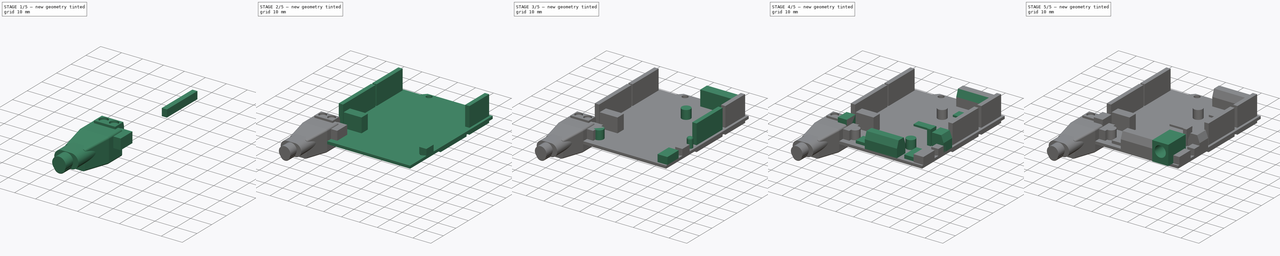
[diagram: build sequence overview — one tinted view per stage of 5, left to right]
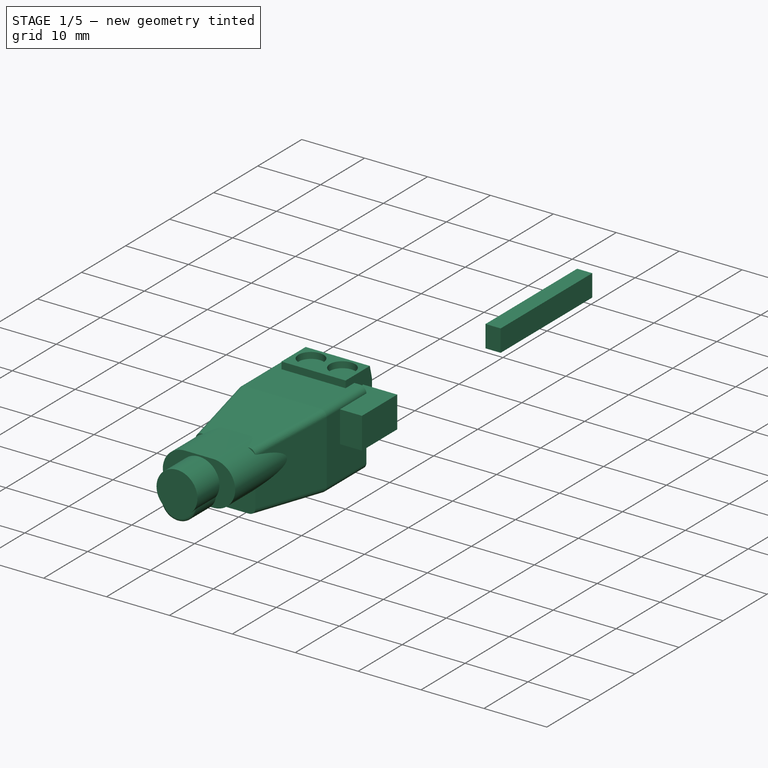
[diagram: stage 1 of 5 — iso view after this stage's code; geometry added in this stage tinted green]
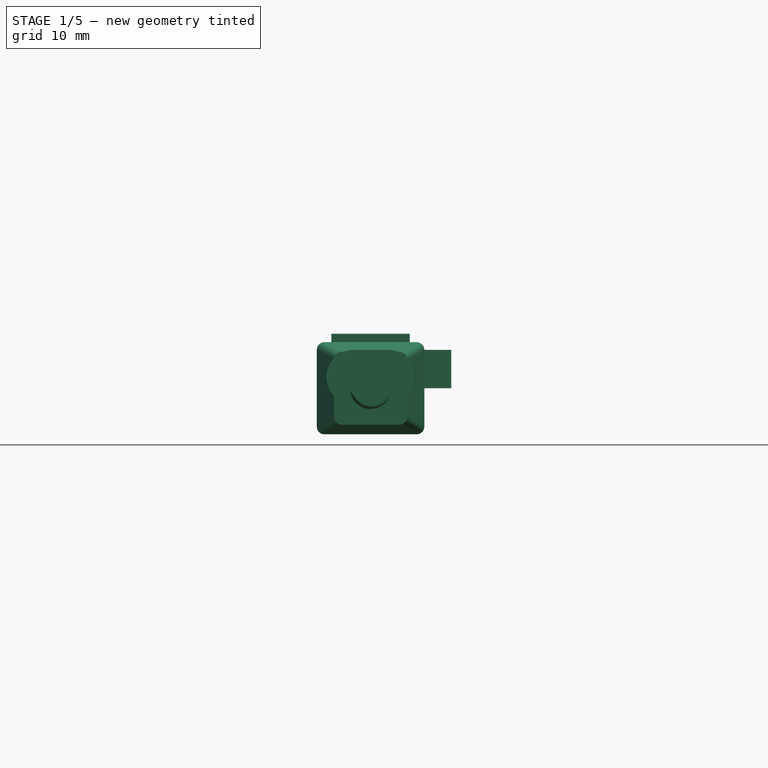
[diagram: stage 1 of 5 — front view after this stage's code; geometry added in this stage tinted green]
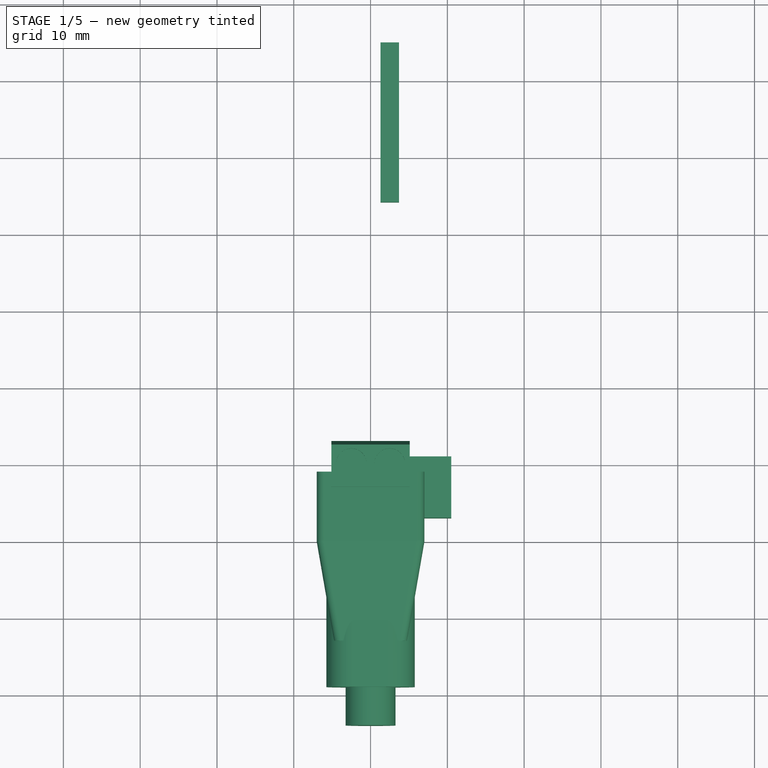
[diagram: stage 1 of 5 — top view after this stage's code; geometry added in this stage tinted green]
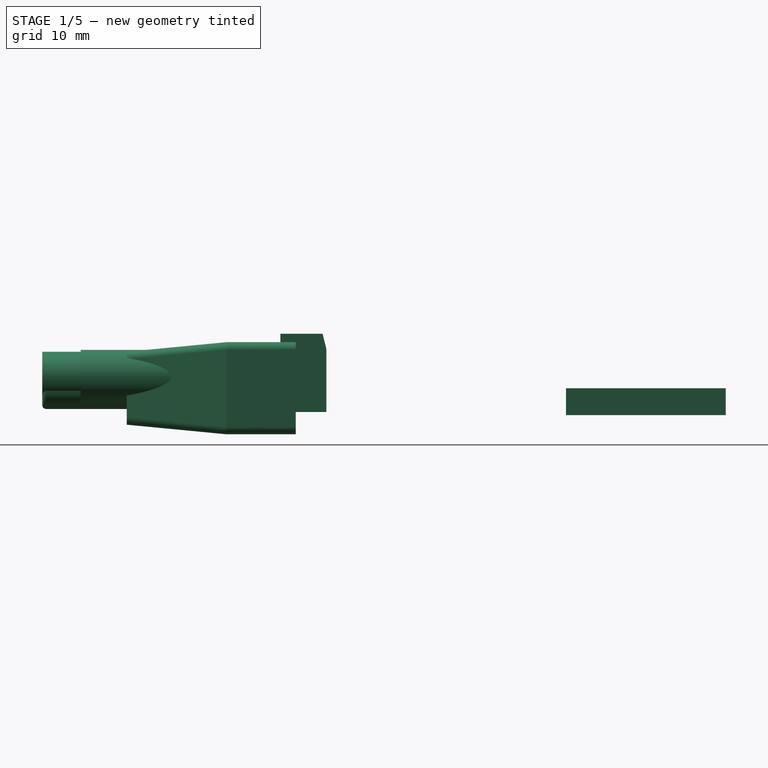
[diagram: stage 1 of 5 — right view after this stage's code; geometry added in this stage tinted green]
FCSTD DOCUMENT  (FreeCAD 0.19R24276 (Git))
Label: Std_MuCAssembly
License: All rights reserved
LicenseURL: http://en.wikipedia.org/wiki/All_rights_reserved
objects: PartDesign::Body×62, Sketcher::SketchObject×58, PartDesign::Pad×49, PartDesign::FeatureBase×14, App::Part×9, PartDesign::Pocket×7, PartDesign::Chamfer×7, PartDesign::Fillet×3, PartDesign::ShapeBinder×2, PartDesign::Plane×1, PartDesign::AdditiveLoft×1
note: 271 computed .brp shape members not serialized (recipe doc carries the construction recipe); baked Part::Feature solids carry a one-line shape summary decoded from their .brp

FEATURE [Sketcher::SketchObject] Sketch034
  FullyConstrained = true
  MapMode = 5
  Support = -> [XY_Plane047]
  sketch-geometry (4):
    g0: LineSegment StartX=0.5 StartY=11 StartZ=0 EndX=10.5 EndY=11 EndZ=0
    g1: LineSegment StartX=10.5 StartY=11 StartZ=0 EndX=10.5 EndY=3 EndZ=0
    g2: LineSegment StartX=10.5 StartY=3 StartZ=0 EndX=0.5 EndY=3 EndZ=0
    g3: LineSegment StartX=0.5 StartY=3 StartZ=0 EndX=0.5 EndY=11 EndZ=0
  constraints (12):
    c: Coincident(g0,g1)
    c: Coincident(g1,g2)
    c: Coincident(g2,g3)
    c: Coincident(g3,g0)
    c: Horizontal(g0)
    c: Horizontal(g2)
    c: Vertical(g1)
    c: Vertical(g3)
    c: Distance(g0) = 10
    c: Distance(g1) = 8
    c: DistanceX(g-1,g2) = 0.5
    c: DistanceY(g-1,g0) = 11
FEATURE [PartDesign::Pad] Pad028
  Direction = (1,1,1)
  Length = 5
  Length2 = 100
  Profile = -> Sketch034
  Type = 0
FEATURE [Sketcher::SketchObject] Sketch036
  FullyConstrained = true
  MapMode = 5
  Support = -> [XY_Plane061]
  sketch-geometry (4):
    g0: LineSegment StartX=1.3 StartY=65 StartZ=0 EndX=3.7 EndY=65 EndZ=0
    g1: LineSegment StartX=3.7 StartY=65 StartZ=0 EndX=3.7 EndY=44.2 EndZ=0
    g2: LineSegment StartX=3.7 StartY=44.2 StartZ=0 EndX=1.3 EndY=44.2 EndZ=0
    g3: LineSegment StartX=1.3 StartY=44.2 StartZ=0 EndX=1.3 EndY=65 EndZ=0
  constraints (12):
    c: Coincident(g0,g1)
    c: Coincident(g1,g2)
    c: Coincident(g2,g3)
    c: Coincident(g3,g0)
    c: Horizontal(g0)
    c: Horizontal(g2)
    c: Vertical(g1)
    c: Vertical(g3)
    c: Distance(g0) = 2.4
    c: Distance(g1) = 20.8
    c: DistanceY(g-1,g0) = 65
    c: DistanceX(g-1,g2) = 1.3
FEATURE [PartDesign::Pad] Pad030
  Direction = (1,1,1)
  Length = 3.5
  Length2 = 100
  Profile = -> Sketch036
  Reversed = true
  Type = 0
FEATURE [PartDesign::Body] Body033  label="Grove_I2C4"
  BaseFeature = -> Body051
  Group = -> [Clone013]
  Origin = -> Origin055
  Placement = pos=(28,36,0) rot=(0,0,1;0rad)
  Tip = -> Clone013
FEATURE [PartDesign::Body] Body034  label="Grove_D7"
  BaseFeature = -> Body051
  Group = -> [Clone006]
  Origin = -> Origin049
  Placement = pos=(14,12,0) rot=(0,0,1;0rad)
  Tip = -> Clone006
FEATURE [PartDesign::Body] Body035  label="Grove_D2"
  BaseFeature = -> Body051
  Group = -> [Clone008]
  Origin = -> Origin050
  Placement = pos=(0,24,0) rot=(0,0,1;0rad)
  Tip = -> Clone008
FEATURE [PartDesign::Body] Body036  label="Grove_D6"
  BaseFeature = -> Body051
  Group = -> [Clone009]
  Origin = -> Origin053
  Placement = pos=(14,24,0) rot=(0,0,1;0rad)
  Tip = -> Clone009
FEATURE [PartDesign::Body] Body037  label="Grove_I2C3"
  BaseFeature = -> Body051
  Group = -> [Clone010]
  Origin = -> Origin051
  Placement = pos=(28,24,0) rot=(0,0,1;0rad)
  Tip = -> Clone010
FEATURE [PartDesign::Body] Body038  label="Grove_D5"
  BaseFeature = -> Body051
  Group = -> [Clone012]
  Origin = -> Origin054
  Placement = pos=(14,36,0) rot=(0,0,1;0rad)
  Tip = -> Clone012
FEATURE [PartDesign::Body] Body040  label="Grove_I2C2"
  BaseFeature = -> Body051
  Group = -> [Clone007]
  Origin = -> Origin047
  Placement = pos=(28,12,0) rot=(0,0,1;0rad)
  Tip = -> Clone007
FEATURE [PartDesign::Body] Body041  label="Grove_UART"
  BaseFeature = -> Body051
  Group = -> [Clone011]
  Origin = -> Origin037
  Placement = pos=(0,36,0) rot=(0,0,1;0rad)
  Tip = -> Clone011
FEATURE [PartDesign::Body] Body046  label="Grove_D8"
  BaseFeature = -> Body051
  Group = -> [Clone003]
  Origin = -> Origin042
  Placement = pos=(14,0,0) rot=(0,0,1;0rad)
  Tip = -> Clone003
FEATURE [PartDesign::Body] Body047  label="Grove_I2C"
  BaseFeature = -> Body051
  Group = -> [Clone004]
  Origin = -> Origin043
  Placement = pos=(28,0,0) rot=(0,0,1;0rad)
  Tip = -> Clone004
FEATURE [PartDesign::Body] Body048  label="Grove_D3"
  BaseFeature = -> Body051
  Group = -> [Clone005]
  Origin = -> Origin033
  Placement = pos=(0,12,0) rot=(0,0,1;0rad)
  Tip = -> Clone005
FEATURE [PartDesign::Body] Body052  label="Grove_A0"
  BaseFeature = -> Body050
  Group = -> [Clone002]
  Origin = -> Origin040
  Placement = pos=(36,0,0) rot=(0,0,1;0rad)
  Tip = -> Clone002
FEATURE [PartDesign::Body] Body053  label="MainBoard002"
  Group = -> [Sketch031,Pad031,Sketch032,Pocket003]
  Origin = -> Origin060
  Placement = pos=(-26.7,0,0) rot=(0,0,1;0rad)
  Tip = -> Pocket003
FEATURE [App::Part] Part004  label="GroveShield"
  Group = -> [Body053]
  Origin = -> Origin061
  Placement = pos=(0,0,24) rot=(0,0,1;0rad)
FEATURE [PartDesign::Body] Body054  label="Grove_A2"
  BaseFeature = -> Body050
  Group = -> [Clone]
  Origin = -> Origin039
  Placement = pos=(12,0,0) rot=(0,0,1;0rad)
  Tip = -> Clone
FEATURE [App::Part] Part003  label="GroveConnectors"
  Group = -> [Body050,Body054,Body044,Body052,Body051,Body046,Body047,Body048,Body034,Body040,Body035,Body036,Body037,Body041,Body038,Body033]
  Origin = -> Origin048
  Placement = pos=(-26.7,0,24) rot=(0,0,1;0rad)
FEATURE [PartDesign::Body] Body055  label="Pins007"
  Group = -> [Sketch036,Pad030]
  Origin = -> Origin041
  Placement = pos=(-26.7,0,0) rot=(0,0,1;0rad)
  Tip = -> Pad030
FEATURE [App::Part] Part006  label="Pins"
  Group = -> [Body049,Body055,Body045,Body043]
  Origin = -> Origin052
  Placement = pos=(0,0,24) rot=(0,0,1;0rad)
FEATURE [Sketcher::SketchObject] Sketch047
  FullyConstrained = true
  MapMode = 5
  Placement = pos=(0,0,0) rot=(1,0,0;1.5708rad)
  Support = -> [XZ_Plane065]
  sketch-geometry (6):
    g0: LineSegment StartX=-7 StartY=6 StartZ=0 EndX=7 EndY=6 EndZ=0
    g1: LineSegment StartX=7 StartY=6 StartZ=0 EndX=7 EndY=-6 EndZ=0
    g2: LineSegment StartX=7 StartY=-6 StartZ=0 EndX=-7 EndY=-6 EndZ=0
    g3: LineSegment StartX=-7 StartY=-6 StartZ=0 EndX=-7 EndY=6 EndZ=0
    g4: LineSegment StartX=0 StartY=0 StartZ=0 EndX=0 EndY=6 EndZ=0
    g5: LineSegment StartX=0 StartY=0 StartZ=0 EndX=7 EndY=-8e-16 EndZ=0
  constraints (16):
    c: Coincident(g0,g1)
    c: Coincident(g1,g2)
    c: Coincident(g2,g3)
    c: Coincident(g3,g0)
    c: Horizontal(g0)
    c: Horizontal(g2)
    c: Vertical(g1)
    c: Vertical(g3)
    c: Coincident(g4,g-1)
    c: PointOnObject(g4,g-2)
    c: Coincident(g5,g-1)
    c: PointOnObject(g5,g-1)
    c: Symmetric(g0,g0,g4)
    c: Symmetric(g0,g1,g5)
    c: Distance(g0) = 14
    c: Distance(g1) = 12
FEATURE [PartDesign::Pad] Pad042
  Direction = (1,1,1)
  Length = 9
  Length2 = 100
  Placement = pos=(0,0,0) rot=(1,0,0;1.5708rad)
  Profile = -> Sketch047
  Reversed = true
  Type = 0
FEATURE [Sketcher::SketchObject] Sketch046
  FullyConstrained = false
  MapMode = 5
  Placement = pos=(0,0,0) rot=(1,0,0;1.5708rad)
  Support = -> [Pad042]
  sketch-geometry (6):
    g0: LineSegment StartX=0 StartY=0 StartZ=0 EndX=0 EndY=6 EndZ=0
    g1: LineSegment StartX=-0.391357 StartY=0 StartZ=0 EndX=7 EndY=-2e-16 EndZ=0
    g2: LineSegment StartX=-7 StartY=6 StartZ=0 EndX=7 EndY=6 EndZ=0
    g3: LineSegment StartX=7 StartY=6 StartZ=0 EndX=7 EndY=-6 EndZ=0
    g4: LineSegment StartX=7 StartY=-6 StartZ=0 EndX=-7 EndY=-6 EndZ=0
    g5: LineSegment StartX=-7 StartY=-6 StartZ=0 EndX=-7 EndY=6 EndZ=0
  constraints (16):
    c: Coincident(g0,g-1)
    c: PointOnObject(g0,g-2)
    c: PointOnObject(g1,g-1)
    c: PointOnObject(g1,g-1)
    c: Coincident(g2,g3)
    c: Coincident(g3,g4)
    c: Coincident(g4,g5)
    c: Coincident(g5,g2)
    c: Horizontal(g2)
    c: Horizontal(g4)
    c: Vertical(g3)
    c: Vertical(g5)
    c: Symmetric(g2,g2,g0)
    c: Symmetric(g2,g3,g1)
    c: Distance(g2) = 14
    c: Distance(g3) = 12
FEATURE [PartDesign::ShapeBinder] CopyFillet
  Placement = pos=(0,0,0) rot=(1,0,0;1.5708rad)
  TraceSupport = false
FEATURE [PartDesign::ShapeBinder] CopyFillet001
  Placement = pos=(0,9,-1e-14) rot=(0,0,1;0rad)
  TraceSupport = false
FEATURE [PartDesign::Plane] DatumPlane
  AttachmentOffset = pos=(0,0,13) rot=(0,0,1;0rad)
  Length = 60
  MapMode = 5
  Placement = pos=(0,-13,-2.9e-15) rot=(1,0,0;1.5708rad)
  ResizeMode = 0
  Support = -> [XZ_Plane065]
  Width = 60
FEATURE [Sketcher::SketchObject] Sketch048
  FullyConstrained = true
  MapMode = 5
  Placement = pos=(0,-13,-2.9e-15) rot=(1,0,0;1.5708rad)
  Support = -> [DatumPlane]
  sketch-geometry (6):
    g0: LineSegment StartX=-4.75 StartY=4.75 StartZ=0 EndX=4.75 EndY=4.75 EndZ=0
    g1: LineSegment StartX=4.75 StartY=4.75 StartZ=0 EndX=4.75 EndY=-4.75 EndZ=0
    g2: LineSegment StartX=4.75 StartY=-4.75 StartZ=0 EndX=-4.75 EndY=-4.75 EndZ=0
    g3: LineSegment StartX=-4.75 StartY=-4.75 StartZ=0 EndX=-4.75 EndY=4.75 EndZ=0
    g4: LineSegment StartX=0 StartY=0 StartZ=0 EndX=0 EndY=4.75 EndZ=0
    g5: LineSegment StartX=0 StartY=0 StartZ=0 EndX=4.75 EndY=0 EndZ=0
  constraints (16):
    c: Coincident(g0,g1)
    c: Coincident(g1,g2)
    c: Coincident(g2,g3)
    c: Coincident(g3,g0)
    c: Horizontal(g0)
    c: Horizontal(g2)
    c: Vertical(g1)
    c: Vertical(g3)
    c: Coincident(g4,g-1)
    c: PointOnObject(g4,g-2)
    c: Coincident(g5,g-1)
    c: PointOnObject(g5,g-1)
    c: Symmetric(g0,g0,g4)
    c: Symmetric(g0,g1,g5)
    c: Distance(g0) = 9.5
    c: Distance(g1) = 9.5
FEATURE [PartDesign::AdditiveLoft] AdditiveLoft
  BaseFeature = -> Pad042
  Closed = false
  Placement = pos=(0,0,0) rot=(1,0,0;1.5708rad)
  Profile = -> Sketch046
  Ruled = false
  Sections = -> [Sketch048]
FEATURE [PartDesign::Fillet] Fillet002
  Base = -> AdditiveLoft [Edge5,Edge17,Edge13,Edge1,Edge8,Edge18,Edge2,Edge11]
  BaseFeature = -> AdditiveLoft
  Placement = pos=(0,0,0) rot=(1,0,0;1.5708rad)
  Radius = 1
  SupportTransform = false
FEATURE [PartDesign::Body] Body058  label="Shell"
  Group = -> [Sketch047,Pad042,DatumPlane,Sketch048,Sketch046,AdditiveLoft,Fillet002]
  Origin = -> Origin065
  Tip = -> Fillet002
FEATURE [Sketcher::SketchObject] Sketch051
  FullyConstrained = true
  MapMode = 5
  Placement = pos=(0,-13,7.7e-15) rot=(1,0,0;1.5708rad)
  Support = -> [CopyFillet]
  sketch-geometry (1):
    g0: Circle CenterX=0 CenterY=0 CenterZ=0 NormalX=0 NormalY=0 NormalZ=1 AngleXU=0 Radius=2.7
  constraints (2):
    c: Coincident(g0,g-1)
    c: Diameter(g0) = 5.4
FEATURE [PartDesign::Pad] Pad043
  Direction = (1,1,1)
  Length = 11
  Length2 = 100
  Placement = pos=(0,0,0) rot=(1,0,0;1.5708rad)
  Profile = -> Sketch051
  Type = 0
FEATURE [PartDesign::Fillet] Fillet001
  Base = -> Pad043 [Edge3]
  BaseFeature = -> Pad043
  Placement = pos=(0,0,0) rot=(1,0,0;1.5708rad)
  Radius = 0.5
  SupportTransform = false
FEATURE [Sketcher::SketchObject] Sketch050
  FullyConstrained = true
  MapMode = 5
  Placement = pos=(0,-24,2.36e-14) rot=(1,0,0;1.5708rad)
  Support = -> [Fillet001]
  sketch-geometry (1):
    g0: Circle CenterX=0 CenterY=0 CenterZ=0 NormalX=0 NormalY=0 NormalZ=1 AngleXU=0 Radius=1.1
  constraints (2):
    c: Coincident(g0,g-1)
    c: Diameter(g0) = 2.2
FEATURE [PartDesign::Pocket] Pocket005
  BaseFeature = -> Fillet001
  Length = 11
  Length2 = 100
  Placement = pos=(0,0,0) rot=(1,0,0;1.5708rad)
  Profile = -> Sketch050
  Type = 0
FEATURE [PartDesign::Body] Body056  label="PowerOuter"
  Group = -> [CopyFillet,Sketch051,Pad043,Fillet001,Sketch050,Pocket005]
  Origin = -> Origin063
  Tip = -> Pocket005
FEATURE [Sketcher::SketchObject] Sketch052
  FullyConstrained = true
  MapMode = 5
  Placement = pos=(0,9,-1e-14) rot=(0,0.707107,0.707107;3.14159rad)
  Support = -> [CopyFillet001]
  sketch-geometry (5):
    g0: LineSegment StartX=-5.1 StartY=7.1 StartZ=0 EndX=5.1 EndY=7.1 EndZ=0
    g1: LineSegment StartX=5.1 StartY=7.1 StartZ=0 EndX=5.1 EndY=-3.1 EndZ=0
    g2: LineSegment StartX=5.1 StartY=-3.1 StartZ=0 EndX=-5.1 EndY=-3.1 EndZ=0
    g3: LineSegment StartX=-5.1 StartY=-3.1 StartZ=0 EndX=-5.1 EndY=7.1 EndZ=0
    g4: LineSegment StartX=0 StartY=0 StartZ=0 EndX=0 EndY=7.1 EndZ=0
  constraints (14):
    c: Coincident(g0,g1)
    c: Coincident(g1,g2)
    c: Coincident(g2,g3)
    c: Coincident(g3,g0)
    c: Horizontal(g0)
    c: Horizontal(g2)
    c: Vertical(g1)
    c: Vertical(g3)
    c: Coincident(g4,g-1)
    c: Vertical(g4)
    c: Symmetric(g0,g0,g4)
    c: Distance(g0) = 10.2
    c: Distance(g1) = 10.2
    c: DistanceY(g1,g-1) = 3.1
FEATURE [PartDesign::Pad] Pad044
  Direction = (1,1,1)
  Length = 4
  Length2 = 2
  Placement = pos=(0,9,-1e-14) rot=(0,0,1;0rad)
  Profile = -> Sketch052
  Type = 4
FEATURE [Sketcher::SketchObject] Sketch053
  FullyConstrained = true
  MapMode = 5
  Placement = pos=(0,9,7.1) rot=(1,0,0;0rad)
  Support = -> [Pad044]
  sketch-geometry (4):
    g0: Circle CenterX=-2.5 CenterY=1 CenterZ=0 NormalX=0 NormalY=0 NormalZ=1 AngleXU=0 Radius=2
    g1: Circle CenterX=2.5 CenterY=1 CenterZ=0 NormalX=0 NormalY=0 NormalZ=1 AngleXU=0 Radius=2
    g2: LineSegment StartX=-2.5 StartY=1 StartZ=0 EndX=2.5 EndY=1 EndZ=0
    g3: LineSegment StartX=0 StartY=0 StartZ=0 EndX=0 EndY=1 EndZ=0
  constraints (10):
    c: Equal(g0,g1)
    c: Diameter(g0) = 4
    c: Coincident(g2,g0)
    c: Coincident(g2,g1)
    c: Horizontal(g2)
    c: Distance(g2) = 5
    c: Coincident(g3,g-1)
    c: PointOnObject(g3,g-2)
    c: Symmetric(g0,g1,g3)
    c: Distance(g3) = 1
FEATURE [PartDesign::Pocket] Pocket004
  BaseFeature = -> Pad044
  Length = 1
  Length2 = 100
  Placement = pos=(0,9,-1e-14) rot=(0,0,1;0rad)
  Profile = -> Sketch053
  Type = 0
FEATURE [PartDesign::Chamfer] Chamfer006
  Angle = 45
  Base = -> Pocket004 [Edge3]
  BaseFeature = -> Pocket004
  ChamferType = 1
  FlipDirection = false
  Placement = pos=(0,9,-1e-14) rot=(0,0,1;0rad)
  Size = 0.5
  Size2 = 2
  SupportTransform = false
FEATURE [Sketcher::SketchObject] Sketch049
  FullyConstrained = true
  MapMode = 5
  Placement = pos=(0,13,2.38419e-07) rot=(0,0.707107,0.707107;3.14159rad)
  Support = -> [Chamfer006]
  sketch-geometry (9):
    g0: LineSegment StartX=-0.5 StartY=0 StartZ=0 EndX=0.5 EndY=0 EndZ=0
    g1: LineSegment StartX=-4.8 StartY=2.5 StartZ=0 EndX=-0.5 EndY=2.5 EndZ=0
    g2: LineSegment StartX=-0.5 StartY=2.5 StartZ=0 EndX=-0.5 EndY=-2.5 EndZ=0
    g3: LineSegment StartX=-0.5 StartY=-2.5 StartZ=0 EndX=-4.8 EndY=-2.5 EndZ=0
    g4: LineSegment StartX=-4.8 StartY=-2.5 StartZ=0 EndX=-4.8 EndY=2.5 EndZ=0
    g5: LineSegment StartX=4.8 StartY=-2.5 StartZ=0 EndX=0.5 EndY=-2.5 EndZ=0
    g6: LineSegment StartX=0.5 StartY=-2.5 StartZ=0 EndX=0.5 EndY=2.5 EndZ=0
    g7: LineSegment StartX=0.5 StartY=2.5 StartZ=0 EndX=4.8 EndY=2.5 EndZ=0
    g8: LineSegment StartX=4.8 StartY=2.5 StartZ=0 EndX=4.8 EndY=-2.5 EndZ=0
  constraints (25):
    c: Coincident(g1,g2)
    c: Coincident(g2,g3)
    c: Coincident(g3,g4)
    c: Coincident(g4,g1)
    c: Horizontal(g1)
    c: Horizontal(g3)
    c: Vertical(g2)
    c: Vertical(g4)
    c: Coincident(g5,g6)
    c: Coincident(g6,g7)
    c: Coincident(g7,g8)
    c: Coincident(g8,g5)
    c: Horizontal(g5)
    c: Horizontal(g7)
    c: Vertical(g6)
    c: Vertical(g8)
    c: Symmetric(g2,g1,g0)
    c: Symmetric(g5,g6,g0)
    c: Equal(g1,g7)
    c: Equal(g8,g4)
    c: Symmetric(g0,g0,g-1)
    c: Distance(g0) = 1
    c: Distance(g8) = 5
    c: Horizontal(g0)
    c: Distance(g7) = 4.3
FEATURE [PartDesign::Pocket] Pocket006
  BaseFeature = -> Chamfer006
  Length = 5
  Length2 = 100
  Placement = pos=(0,9,-1e-14) rot=(0,0,1;0rad)
  Profile = -> Sketch049
  Type = 0
FEATURE [PartDesign::Body] Body057  label="PowerHeader001"
  Group = -> [CopyFillet001,Sketch052,Pad044,Sketch053,Pocket004,Chamfer006,Sketch049,Pocket006]
  Origin = -> Origin064
  Tip = -> Pocket006
FEATURE [App::Part] Part007  label="PowerConnector"
  Group = -> [Body058,Body056,Body057]
  Origin = -> Origin066
  Placement = pos=(19.3,-18,6) rot=(0,0,1;3.14159rad)
FEATURE [Sketcher::SketchObject] Sketch054
  FullyConstrained = true
  MapMode = 5
  Placement = pos=(0,0,0) rot=(1,0,0;1.5708rad)
  Support = -> [XZ_Plane067]
  sketch-geometry (7):
    g0: ArcOfCircle CenterX=-2.5 CenterY=1.5 CenterZ=0 NormalX=0 NormalY=0 NormalZ=1 AngleXU=0 Radius=1.5 StartAngle=1.5708 EndAngle=4.71239
    g1: ArcOfCircle CenterX=2.5 CenterY=1.5 CenterZ=0 NormalX=0 NormalY=0 NormalZ=1 AngleXU=0 Radius=1.5 StartAngle=4.71239 EndAngle=7.85398
    g2: LineSegment StartX=-2.5 StartY=0 StartZ=0 EndX=2.5 EndY=0 EndZ=0
    g3: LineSegment StartX=-2.5 StartY=3 StartZ=0 EndX=2.5 EndY=3 EndZ=0
    g4: GeomPoint X=-4 Y=1.5 Z=0
    g5: GeomPoint X=4 Y=1.5 Z=0
    g6: LineSegment StartX=-4 StartY=1.5 StartZ=0 EndX=4 EndY=1.5 EndZ=0
  constraints (15):
    c: Tangent(g0,g3) = 1.5708
    c: Tangent(g0,g2) = -1.5708
    c: Tangent(g2,g1) = -1.5708
    c: Tangent(g3,g1) = 1.5708
    c: Horizontal(g2)
    c: Equal(g0,g1)
    c: Symmetric(g0,g1,g-1)
    c: PointOnObject(g4,g0)
    c: PointOnObject(g5,g1)
    c: Coincident(g6,g4)
    c: Coincident(g6,g5)
    c: Horizontal(g6)
    c: PointOnObject(g0,g6)
    c: DistanceX(g4,g5) = 8
    c: DistanceY(g1,g1) = 3
FEATURE [PartDesign::Pad] Pad045
  Direction = (1,1,1)
  Length = 5.5
  Length2 = 100
  Placement = pos=(0,0,0) rot=(1,0,0;1.5708rad)
  Profile = -> Sketch054
  Reversed = true
  Type = 0
FEATURE [PartDesign::Body] Body059  label="USB"
  Group = -> [Sketch054,Pad045]
  Origin = -> Origin067
  Placement = pos=(-11.7,0,0) rot=(0,0,1;0rad)
  Tip = -> Pad045
FEATURE [App::Part] Part  label="MetroM4"
  Group = -> [Body,Body001,Body002,Body003,Body004,Body005,Body059]
  Origin = -> Origin
FEATURE [Sketcher::SketchObject] Sketch055
  FullyConstrained = true
  MapMode = 5
  Placement = pos=(0,0,0) rot=(1,0,0;1.5708rad)
  Support = -> [XZ_Plane069]
  sketch-geometry (7):
    g0: ArcOfCircle CenterX=-2.5 CenterY=1.5 CenterZ=0 NormalX=0 NormalY=0 NormalZ=1 AngleXU=0 Radius=1.5 StartAngle=1.5708 EndAngle=4.71239
    g1: ArcOfCircle CenterX=2.5 CenterY=1.5 CenterZ=0 NormalX=0 NormalY=0 NormalZ=1 AngleXU=0 Radius=1.5 StartAngle=4.71239 EndAngle=7.85398
    g2: LineSegment StartX=-2.5 StartY=2e-16 StartZ=0 EndX=2.5 EndY=2e-16 EndZ=0
    g3: LineSegment StartX=-2.5 StartY=3 StartZ=0 EndX=2.5 EndY=3 EndZ=0
    g4: GeomPoint X=-4 Y=1.5 Z=0
    g5: GeomPoint X=4 Y=1.5 Z=0
    g6: LineSegment StartX=-4 StartY=1.5 StartZ=0 EndX=4 EndY=1.5 EndZ=0
  constraints (15):
    c: Tangent(g0,g3) = 1.5708
    c: Tangent(g0,g2) = -1.5708
    c: Tangent(g2,g1) = -1.5708
    c: Tangent(g3,g1) = 1.5708
    c: Horizontal(g2)
    c: Equal(g0,g1)
    c: Symmetric(g0,g1,g-1)
    c: DistanceY(g1,g1) = 3
    c: PointOnObject(g4,g0)
    c: PointOnObject(g5,g1)
    c: Coincident(g6,g4)
    c: Coincident(g6,g5)
    c: Horizontal(g6)
    c: PointOnObject(g1,g6)
    c: DistanceX(g4,g5) = 8
FEATURE [PartDesign::Pad] Pad046
  Direction = (1,1,1)
  Length = 6
  Length2 = 100
  Placement = pos=(0,0,0) rot=(1,0,0;1.5708rad)
  Profile = -> Sketch055
  Reversed = true
  Type = 0
FEATURE [PartDesign::Body] Body060  label="USBConnect"
  Group = -> [Sketch055,Pad046]
  Origin = -> Origin069
  Tip = -> Pad046
FEATURE [Sketcher::SketchObject] Sketch056
  FullyConstrained = true
  MapMode = 5
  Placement = pos=(0,0,0) rot=(1,0,0;1.5708rad)
  Support = -> [XZ_Plane070]
  sketch-geometry (12):
    g0: LineSegment StartX=-4 StartY=0 StartZ=0 EndX=4 EndY=0 EndZ=0
    g1: LineSegment StartX=4 StartY=0 StartZ=0 EndX=4 EndY=3 EndZ=0
    g2: LineSegment StartX=4 StartY=3 StartZ=0 EndX=-4 EndY=3 EndZ=0
    g3: LineSegment StartX=-4 StartY=3 StartZ=0 EndX=-4 EndY=0 EndZ=0
    g4: GeomPoint X=1e-16 Y=1.5 Z=0
    g5: ArcOfCircle CenterX=-2.25 CenterY=1.5 CenterZ=0 NormalX=0 NormalY=0 NormalZ=1 AngleXU=0 Radius=3.5 StartAngle=1.5708 EndAngle=4.71239
    g6: ArcOfCircle CenterX=2.25 CenterY=1.5 CenterZ=0 NormalX=0 NormalY=0 NormalZ=1 AngleXU=0 Radius=3.5 StartAngle=4.71239 EndAngle=7.85398
    g7: LineSegment StartX=-2.25 StartY=-2 StartZ=0 EndX=2.25 EndY=-2 EndZ=0
    g8: LineSegment StartX=-2.25 StartY=5 StartZ=0 EndX=2.25 EndY=5 EndZ=0
    g9: GeomPoint X=5.75 Y=1.5 Z=0
    g10: GeomPoint X=-5.75 Y=1.5 Z=0
    g11: LineSegment StartX=-5.75 StartY=1.5 StartZ=0 EndX=5.75 EndY=1.5 EndZ=0
  constraints (27):
    c: Coincident(g0,g1)
    c: Coincident(g1,g2)
    c: Coincident(g2,g3)
    c: Coincident(g3,g0)
    c: Horizontal(g0)
    c: Horizontal(g2)
    c: Vertical(g1)
    c: Vertical(g3)
    c: Symmetric(g0,g0,g-1)
    c: Distance(g1) = 3
    c: Distance(g2) = 8
    c: Symmetric(g1,g0,g4)
    c: Tangent(g5,g8) = 1.5708
    c: Tangent(g5,g7) = -1.5708
    c: Tangent(g7,g6) = -1.5708
    c: Tangent(g8,g6) = 1.5708
    c: Horizontal(g7)
    c: Equal(g5,g6)
    c: PointOnObject(g9,g6)
    c: PointOnObject(g10,g5)
    c: Coincident(g11,g10)
    c: Coincident(g11,g9)
    c: Horizontal(g11)
    c: PointOnObject(g5,g11)
    c: Symmetric(g10,g9,g4)
    c: DistanceY(g6,g6) = 7
    c: DistanceX(g10,g9) = 11.5
FEATURE [PartDesign::Pad] Pad047
  Direction = (1,1,1)
  Length = 19
  Length2 = 100
  Placement = pos=(0,0,0) rot=(1,0,0;1.5708rad)
  Profile = -> Sketch056
  Type = 0
FEATURE [Sketcher::SketchObject] Sketch057
  FullyConstrained = true
  MapMode = 5
  Placement = pos=(0,-19,1.27e-14) rot=(1,0,0;1.5708rad)
  Support = -> [Pad047]
  sketch-geometry (1):
    g0: Circle CenterX=0 CenterY=1.5 CenterZ=0 NormalX=0 NormalY=0 NormalZ=1 AngleXU=0 Radius=3.25
  constraints (3):
    c: PointOnObject(g0,g-2)
    c: DistanceY(g-1,g0) = 1.5
    c: Diameter(g0) = 6.5
FEATURE [PartDesign::Pad] Pad048
  BaseFeature = -> Pad047
  Direction = (1,1,1)
  Length = 5
  Length2 = 100
  Placement = pos=(0,0,0) rot=(1,0,0;1.5708rad)
  Profile = -> Sketch057
  Type = 0
FEATURE [PartDesign::Body] Body061  label="USBCableShield"
  Group = -> [Sketch056,Pad047,Sketch057,Pad048]
  Origin = -> Origin070
  Tip = -> Pad048
FEATURE [App::Part] Part008  label="USBCable"
  Group = -> [Body060,Body061]
  Origin = -> Origin068
  Placement = pos=(-11.7,-2,0) rot=(0,0,1;0rad)
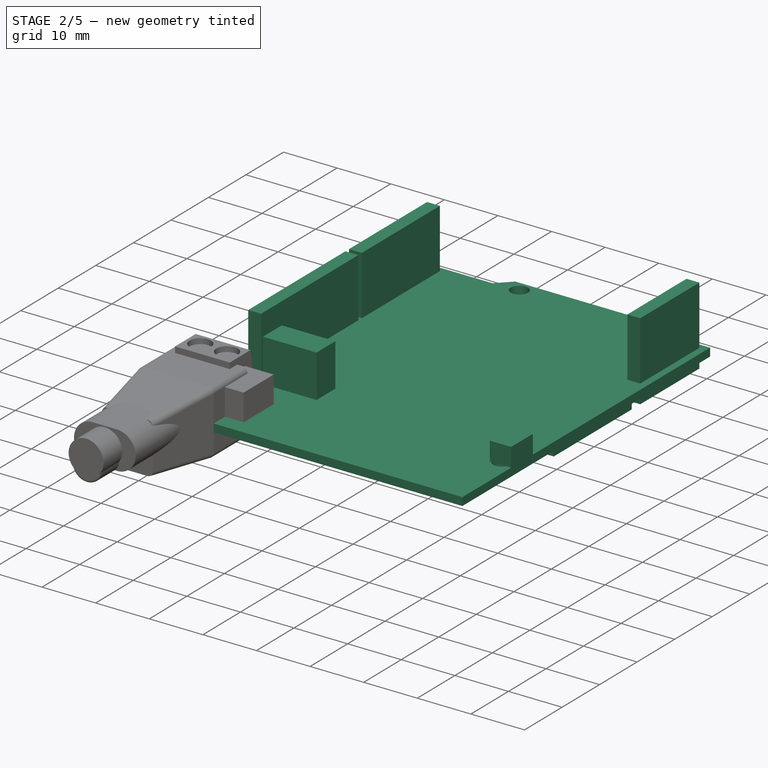
[diagram: stage 2 of 5 — iso view after this stage's code; geometry added in this stage tinted green]
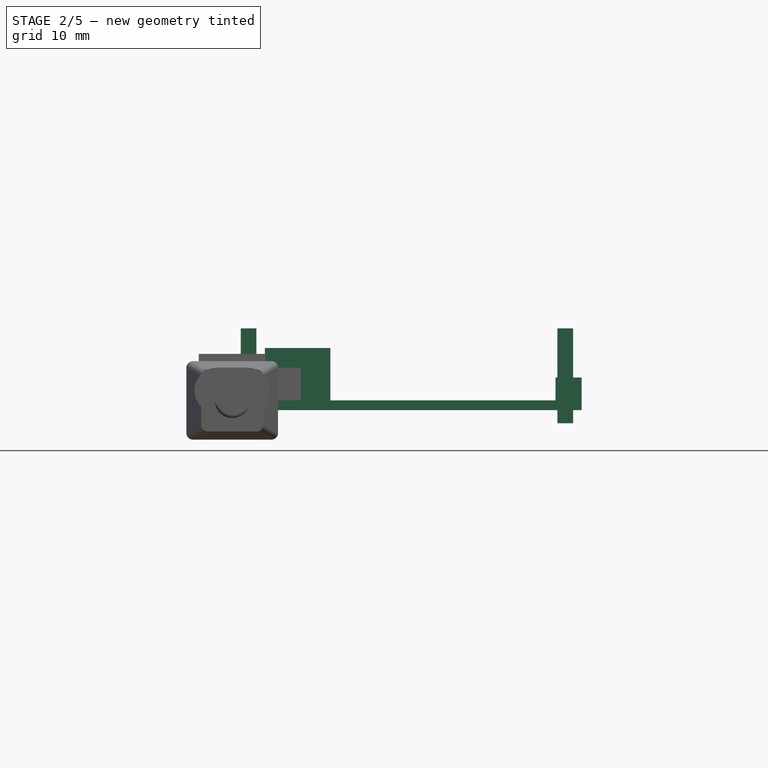
[diagram: stage 2 of 5 — front view after this stage's code; geometry added in this stage tinted green]
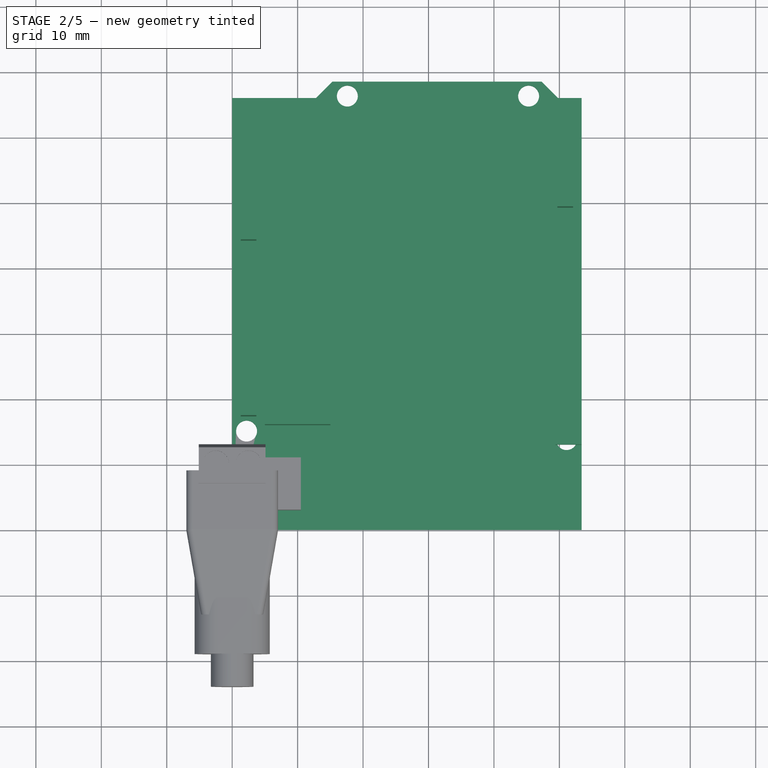
[diagram: stage 2 of 5 — top view after this stage's code; geometry added in this stage tinted green]
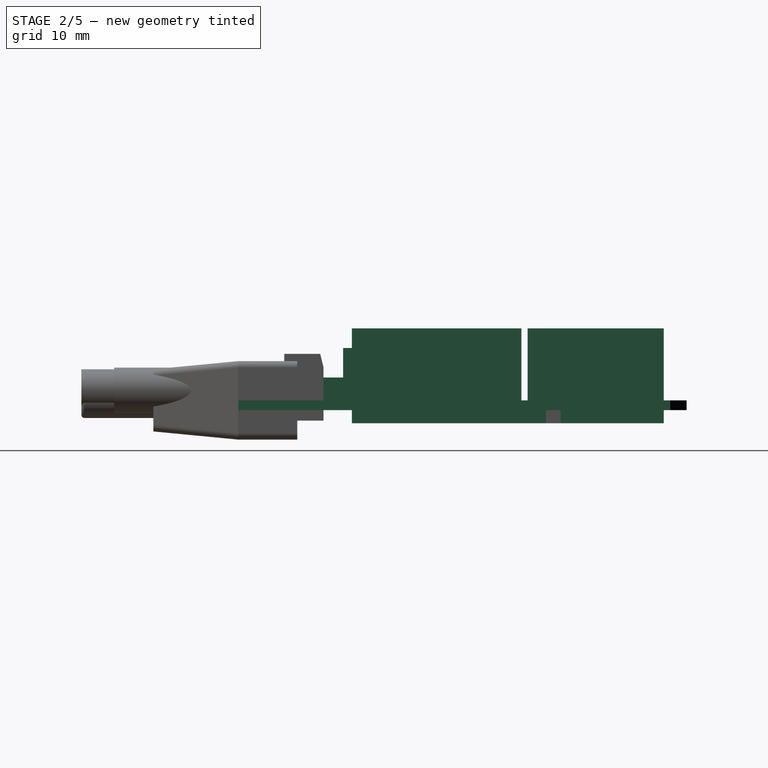
[diagram: stage 2 of 5 — right view after this stage's code; geometry added in this stage tinted green]
FEATURE [PartDesign::Body] Body007  label="MainBoard001"
  Group = -> [Sketch009,Pad014,Sketch010,Pocket002]
  Origin = -> Origin008
  Placement = pos=(-26.7,0,0) rot=(0,0,1;0rad)
  Tip = -> Pocket002
FEATURE [PartDesign::Body] Body008  label="Header2_8pin"
  Group = -> [Sketch012,Pad016]
  Origin = -> Origin009
  Placement = pos=(-26.7,0,0) rot=(0,0,1;0rad)
  Tip = -> Pad016
FEATURE [PartDesign::Body] Body009  label="Header1_10pin"
  Group = -> [Sketch011,Pad011]
  Origin = -> Origin018
  Placement = pos=(-26.7,0,0) rot=(0,0,1;0rad)
  Tip = -> Pad011
FEATURE [PartDesign::Body] Body019  label="Pins2"
  Group = -> [Sketch028,Pad025]
  Origin = -> Origin026
  Placement = pos=(-26.7,0,0) rot=(0,0,1;0rad)
  Tip = -> Pad025
FEATURE [PartDesign::Body] Body011  label="HBridge2"
  Group = -> [Sketch018,Pad021]
  Origin = -> Origin024
  Placement = pos=(-26.7,0,0) rot=(0,0,1;0rad)
  Tip = -> Pad021
FEATURE [PartDesign::Body] Body020  label="PowerHeader"
  Group = -> [Sketch016,Pad007,Chamfer004,Chamfer005]
  Origin = -> Origin023
  Placement = pos=(-26.7,0,0) rot=(0,0,1;0rad)
  Tip = -> Chamfer005
FEATURE [PartDesign::Body] Body015  label="Cap2"
  Group = -> [Sketch026,Pad020]
  Origin = -> Origin020
  Placement = pos=(-26.7,0,0) rot=(0,0,1;0rad)
  Tip = -> Pad020
FEATURE [PartDesign::Body] Body017  label="PowerJumper"
  Group = -> [Sketch024,Pad024]
  Origin = -> Origin025
  Placement = pos=(-26.7,0,0) rot=(0,0,1;0rad)
  Tip = -> Pad024
FEATURE [PartDesign::Body] Body018  label="Pins1"
  Group = -> [Sketch030,Pad023]
  Origin = -> Origin029
  Placement = pos=(-26.7,0,0) rot=(0,0,1;0rad)
  Tip = -> Pad023
FEATURE [PartDesign::Body] Body021  label="ResetButton"
  Group = -> [Sketch017,Pad012]
  Origin = -> Origin016
  Placement = pos=(-26.7,0,0) rot=(0,0,1;0rad)
  Tip = -> Pad012
FEATURE [PartDesign::Body] Body022  label="Pins3"
  Group = -> [Sketch029,Pad026]
  Origin = -> Origin028
  Placement = pos=(-26.7,0,0) rot=(0,0,1;0rad)
  Tip = -> Pad026
FEATURE [PartDesign::Body] Body023  label="M1M2Header"
  Group = -> [Sketch013,Pad017,Chamfer,Chamfer001]
  Origin = -> Origin011
  Placement = pos=(-26.7,0,0) rot=(0,0,1;0rad)
  Tip = -> Chamfer001
FEATURE [PartDesign::Body] Body024  label="FET"
  Group = -> [Sketch020,Pad009]
  Origin = -> Origin021
  Placement = pos=(-26.7,0,0) rot=(0,0,1;0rad)
  Tip = -> Pad009
FEATURE [PartDesign::Body] Body025  label="Pin4"
  Group = -> [Sketch023,Pad027]
  Origin = -> Origin027
  Placement = pos=(-26.7,0,0) rot=(0,0,1;0rad)
  Tip = -> Pad027
FEATURE [PartDesign::Body] Body010  label="HBridge1"
  Group = -> [Sketch019,Pad010]
  Origin = -> Origin014
  Placement = pos=(-26.7,0,0) rot=(0,0,1;0rad)
  Tip = -> Pad010
FEATURE [PartDesign::Body] Body013  label="ServoPins"
  Group = -> [Sketch022,Pad013]
  Origin = -> Origin017
  Placement = pos=(-26.7,0,0) rot=(0,0,1;0rad)
  Tip = -> Pad013
FEATURE [PartDesign::Body] Body012  label="Chip"
  Group = -> [Sketch021,Pad018]
  Origin = -> Origin015
  Placement = pos=(-26.7,0,0) rot=(0,0,1;0rad)
  Tip = -> Pad018
FEATURE [PartDesign::Body] Body026  label="M3M4Header"
  Group = -> [Sketch015,Pad006,Chamfer002,Chamfer003]
  Origin = -> Origin013
  Placement = pos=(-26.7,0,0) rot=(0,0,1;0rad)
  Tip = -> Chamfer003
FEATURE [PartDesign::Body] Body027  label="Header4_6pin"
  Group = -> [Sketch014,Pad015]
  Origin = -> Origin010
  Placement = pos=(-26.7,0,0) rot=(0,0,1;0rad)
  Tip = -> Pad015
FEATURE [PartDesign::Body] Body014  label="Cap1"
  Group = -> [Sketch025,Pad019]
  Origin = -> Origin019
  Placement = pos=(-26.7,0,0) rot=(0,0,1;0rad)
  Tip = -> Pad019
FEATURE [PartDesign::Body] Body016  label="Cap3"
  Group = -> [Sketch027,Pad022]
  Origin = -> Origin022
  Placement = pos=(-26.7,0,0) rot=(0,0,1;0rad)
  Tip = -> Pad022
FEATURE [App::Part] Part001  label="MotorShield"
  Group = -> [Body007,Body009,Body008,Body006,Body027,Body023,Body026,Body020,Body021,Body024,Body010,Body011,Body012,Body013,Body014,Body015,Body016,Body017,Body018,Body019,Body022,Body025]
  Origin = -> Origin007
  Placement = pos=(0,0,12) rot=(0,0,1;0rad)
FEATURE [Sketcher::SketchObject] Sketch031
  FullyConstrained = true
  MapMode = 5
  Support = -> [XY_Plane059]
  sketch-geometry (8):
    g0: LineSegment StartX=-7e-16 StartY=0 StartZ=0 EndX=53.4 EndY=0 EndZ=0
    g1: LineSegment StartX=53.4 StartY=0 StartZ=0 EndX=53.4 EndY=66 EndZ=0
    g2: LineSegment StartX=-7e-16 StartY=66 StartZ=0 EndX=-7e-16 EndY=0 EndZ=0
    g3: LineSegment StartX=12.8 StartY=66 StartZ=0 EndX=15.3 EndY=68.5 EndZ=0
    g4: LineSegment StartX=15.3 StartY=68.5 StartZ=0 EndX=47.3 EndY=68.5 EndZ=0
    g5: LineSegment StartX=47.3 StartY=68.5 StartZ=0 EndX=49.8 EndY=66 EndZ=0
    g6: LineSegment StartX=-7e-16 StartY=66 StartZ=0 EndX=12.8 EndY=66 EndZ=0
    g7: LineSegment StartX=49.8 StartY=66 StartZ=0 EndX=53.4 EndY=66 EndZ=0
  constraints (23):
    c: Coincident(g0,g1)
    c: Coincident(g2,g0)
    c: Horizontal(g0)
    c: Vertical(g1)
    c: Vertical(g2)
    c: Coincident(g0,g-1)
    c: Coincident(g4,g3)
    c: Horizontal(g4)
    c: Coincident(g5,g4)
    c: Coincident(g6,g2)
    c: Coincident(g6,g3)
    c: Horizontal(g6)
    c: Coincident(g7,g5)
    c: Coincident(g7,g1)
    c: Horizontal(g7)
    c: Equal(g3,g5)
    c: Angle(g3,g6) = 2.35619
    c: Angle(g7,g5) = 2.35619
    c: DistanceX(g0,g0) = 53.4
    c: DistanceY(g0,g2) = 66
    c: DistanceY(g0,g3) = 68.5
    c: DistanceX(g2,g3) = 15.3
    c: Distance(g4) = 32
FEATURE [PartDesign::Pad] Pad031
  Direction = (1,1,1)
  Length = 1.5
  Length2 = 100
  Profile = -> Sketch031
  Reversed = true
  Type = 0
FEATURE [Sketcher::SketchObject] Sketch032
  FullyConstrained = true
  MapMode = 5
  Support = -> [XY_Plane059]
  sketch-geometry (5):
    g0: Circle CenterX=2.2 CenterY=15.1 CenterZ=0 NormalX=0 NormalY=0 NormalZ=1 AngleXU=0 Radius=1.6
    g1: Circle CenterX=51.1 CenterY=13.8 CenterZ=0 NormalX=0 NormalY=0 NormalZ=1 AngleXU=0 Radius=1.6
    g2: Circle CenterX=17.6 CenterY=66.3 CenterZ=0 NormalX=0 NormalY=0 NormalZ=1 AngleXU=0 Radius=1.6
    g3: Circle CenterX=45.3 CenterY=66.3 CenterZ=0 NormalX=0 NormalY=0 NormalZ=1 AngleXU=0 Radius=1.6
    g4: LineSegment StartX=17.6 StartY=66.3 StartZ=0 EndX=45.3 EndY=66.3 EndZ=0
  constraints (14):
    c: DistanceY(g-1,g0) = 15.1
    c: DistanceX(g-1,g0) = 2.2
    c: Equal(g0,g1)
    c: Equal(g2,g3)
    c: Equal(g3,g1)
    c: Diameter(g0) = 3.2
    c: DistanceX(g-1,g1) = 51.1
    c: DistanceY(g-1,g1) = 13.8
    c: DistanceY(g-1,g2) = 66.3
    c: Coincident(g4,g2)
    c: Coincident(g4,g3)
    c: Horizontal(g4)
    c: DistanceX(g-1,g2) = 17.6
    c: DistanceX(g2,g3) = 27.7
FEATURE [PartDesign::Pocket] Pocket003
  BaseFeature = -> Pad031
  Length = 5
  Length2 = 100
  Profile = -> Sketch032
  Type = 1
FEATURE [Sketcher::SketchObject] Sketch033
  FullyConstrained = true
  MapMode = 5
  Support = -> [XY_Plane046]
  sketch-geometry (4):
    g0: LineSegment StartX=49.7 StartY=65 StartZ=0 EndX=52.1 EndY=65 EndZ=0
    g1: LineSegment StartX=52.1 StartY=65 StartZ=0 EndX=52.1 EndY=49.25 EndZ=0
    g2: LineSegment StartX=52.1 StartY=49.25 StartZ=0 EndX=49.7 EndY=49.25 EndZ=0
    g3: LineSegment StartX=49.7 StartY=49.25 StartZ=0 EndX=49.7 EndY=65 EndZ=0
  constraints (12):
    c: Coincident(g0,g1)
    c: Coincident(g1,g2)
    c: Coincident(g2,g3)
    c: Coincident(g3,g0)
    c: Horizontal(g0)
    c: Horizontal(g2)
    c: Vertical(g1)
    c: Vertical(g3)
    c: Distance(g0) = 2.4
    c: Distance(g1) = 15.75
    c: DistanceY(g-1,g0) = 65
    c: DistanceX(g-1,g1) = 52.1
FEATURE [PartDesign::Pad] Pad033
  Direction = (1,1,1)
  Length = 3.5
  Length2 = 100
  Profile = -> Sketch033
  Reversed = true
  Type = 0
FEATURE [Sketcher::SketchObject] Sketch035
  FullyConstrained = true
  MapMode = 5
  Support = -> [XY_Plane060]
  sketch-geometry (4):
    g0: LineSegment StartX=1.3 StartY=43.25 StartZ=0 EndX=3.7 EndY=43.25 EndZ=0
    g1: LineSegment StartX=3.7 StartY=43.25 StartZ=0 EndX=3.7 EndY=17.35 EndZ=0
    g2: LineSegment StartX=3.7 StartY=17.35 StartZ=0 EndX=1.3 EndY=17.35 EndZ=0
    g3: LineSegment StartX=1.3 StartY=17.35 StartZ=0 EndX=1.3 EndY=43.25 EndZ=0
  constraints (12):
    c: Coincident(g0,g1)
    c: Coincident(g1,g2)
    c: Coincident(g2,g3)
    c: Coincident(g3,g0)
    c: Horizontal(g0)
    c: Horizontal(g2)
    c: Vertical(g1)
    c: Vertical(g3)
    c: Distance(g2) = 2.4
    c: Distance(g1) = 25.9
    c: DistanceX(g-1,g2) = 1.3
    c: DistanceY(g-1,g0) = 43.25
FEATURE [PartDesign::Pad] Pad029
  Direction = (1,1,1)
  Length = 3.5
  Length2 = 100
  Profile = -> Sketch035
  Reversed = true
  Type = 0
FEATURE [Sketcher::SketchObject] Sketch037
  FullyConstrained = true
  MapMode = 5
  Support = -> [XY_Plane062]
  sketch-geometry (4):
    g0: LineSegment StartX=49.7 StartY=47 StartZ=0 EndX=52.1 EndY=47 EndZ=0
    g1: LineSegment StartX=52.1 StartY=47 StartZ=0 EndX=52.1 EndY=26.2 EndZ=0
    g2: LineSegment StartX=52.1 StartY=26.2 StartZ=0 EndX=49.7 EndY=26.2 EndZ=0
    g3: LineSegment StartX=49.7 StartY=26.2 StartZ=0 EndX=49.7 EndY=47 EndZ=0
  constraints (12):
    c: Coincident(g0,g1)
    c: Coincident(g1,g2)
    c: Coincident(g2,g3)
    c: Coincident(g3,g0)
    c: Horizontal(g0)
    c: Horizontal(g2)
    c: Vertical(g1)
    c: Vertical(g3)
    c: Distance(g0) = 2.4
    c: Distance(g1) = 20.8
    c: DistanceX(g-1,g1) = 52.1
    c: DistanceY(g-1,g0) = 47
FEATURE [PartDesign::Pad] Pad032
  Direction = (1,1,1)
  Length = 3.5
  Length2 = 100
  Profile = -> Sketch037
  Reversed = true
  Type = 0
FEATURE [Sketcher::SketchObject] Sketch038
  FullyConstrained = true
  MapMode = 5
  Support = -> [XY_Plane056]
  sketch-geometry (4):
    g0: LineSegment StartX=1.3 StartY=43.25 StartZ=0 EndX=3.7 EndY=43.25 EndZ=0
    g1: LineSegment StartX=3.7 StartY=43.25 StartZ=0 EndX=3.7 EndY=17.35 EndZ=0
    g2: LineSegment StartX=3.7 StartY=17.35 StartZ=0 EndX=1.3 EndY=17.35 EndZ=0
    g3: LineSegment StartX=1.3 StartY=17.35 StartZ=0 EndX=1.3 EndY=43.25 EndZ=0
  constraints (12):
    c: Coincident(g0,g1)
    c: Coincident(g1,g2)
    c: Coincident(g2,g3)
    c: Coincident(g3,g0)
    c: Horizontal(g0)
    c: Horizontal(g2)
    c: Vertical(g1)
    c: Vertical(g3)
    c: DistanceX(g0,g0) = 2.4
    c: DistanceY(g2,g0) = 25.9
    c: DistanceX(g-1,g2) = 1.3
    c: DistanceY(g-1,g0) = 43.25
FEATURE [PartDesign::Pad] Pad041
  Direction = (1,1,1)
  Length = 11
  Length2 = 100
  Profile = -> Sketch038
  Type = 0
FEATURE [PartDesign::Body] Body028  label="Header1_10pin001"
  Group = -> [Sketch038,Pad041]
  Origin = -> Origin046
  Placement = pos=(-26.7,0,0) rot=(0,0,1;0rad)
  Tip = -> Pad041
FEATURE [Sketcher::SketchObject] Sketch039
  FullyConstrained = true
  MapMode = 5
  Support = -> [XY_Plane054]
  sketch-geometry (4):
    g0: LineSegment StartX=1.3 StartY=65 StartZ=0 EndX=3.7 EndY=65 EndZ=0
    g1: LineSegment StartX=3.7 StartY=65 StartZ=0 EndX=3.7 EndY=44.2 EndZ=0
    g2: LineSegment StartX=3.7 StartY=44.2 StartZ=0 EndX=1.3 EndY=44.2 EndZ=0
    g3: LineSegment StartX=1.3 StartY=44.2 StartZ=0 EndX=1.3 EndY=65 EndZ=0
  constraints (12):
    c: Coincident(g0,g1)
    c: Coincident(g1,g2)
    c: Coincident(g2,g3)
    c: Coincident(g3,g0)
    c: Horizontal(g0)
    c: Horizontal(g2)
    c: Vertical(g1)
    c: Vertical(g3)
    c: DistanceX(g0,g0) = 2.4
    c: DistanceX(g-1,g2) = 1.3
    c: DistanceY(g-1,g0) = 65
    c: DistanceY(g2,g0) = 20.8
FEATURE [PartDesign::Pad] Pad039
  Direction = (1,1,1)
  Length = 11
  Length2 = 100
  Profile = -> Sketch039
  Type = 0
FEATURE [PartDesign::Body] Body039  label="Header3_8pin001"
  Group = -> [Sketch040,Pad034]
  Origin = -> Origin031
  Placement = pos=(-26.7,0,0) rot=(0,0,1;0rad)
  Tip = -> Pad034
FEATURE [Sketcher::SketchObject] Sketch041
  FullyConstrained = true
  MapMode = 5
  Support = -> [XY_Plane030]
  sketch-geometry (4):
    g0: LineSegment StartX=5 StartY=21 StartZ=0 EndX=15 EndY=21 EndZ=0
    g1: LineSegment StartX=15 StartY=21 StartZ=0 EndX=15 EndY=16 EndZ=0
    g2: LineSegment StartX=15 StartY=16 StartZ=0 EndX=5 EndY=16 EndZ=0
    g3: LineSegment StartX=5 StartY=16 StartZ=0 EndX=5 EndY=21 EndZ=0
  constraints (12):
    c: Coincident(g0,g1)
    c: Coincident(g1,g2)
    c: Coincident(g2,g3)
    c: Coincident(g3,g0)
    c: Horizontal(g0)
    c: Horizontal(g2)
    c: Vertical(g1)
    c: Vertical(g3)
    c: Distance(g0) = 10
    c: Distance(g1) = 5
    c: DistanceX(g-1,g1) = 15
    c: DistanceY(g-1,g0) = 21
FEATURE [PartDesign::Pad] Pad040
  Direction = (1,1,1)
  Length = 8
  Length2 = 100
  Profile = -> Sketch041
  Type = 0
FEATURE [Sketcher::SketchObject] Sketch042
  FullyConstrained = true
  MapMode = 5
  Support = -> [XY_Plane053]
  sketch-geometry (4):
    g0: LineSegment StartX=49.7 StartY=65 StartZ=0 EndX=52.1 EndY=65 EndZ=0
    g1: LineSegment StartX=52.1 StartY=65 StartZ=0 EndX=52.1 EndY=49.25 EndZ=0
    g2: LineSegment StartX=52.1 StartY=49.25 StartZ=0 EndX=49.7 EndY=49.25 EndZ=0
    g3: LineSegment StartX=49.7 StartY=49.25 StartZ=0 EndX=49.7 EndY=65 EndZ=0
  constraints (12):
    c: Coincident(g0,g1)
    c: Coincident(g1,g2)
    c: Coincident(g2,g3)
    c: Coincident(g3,g0)
    c: Horizontal(g0)
    c: Horizontal(g2)
    c: Vertical(g1)
    c: Vertical(g3)
    c: DistanceX(g0,g0) = 2.4
    c: DistanceX(g-1,g1) = 52.1
    c: DistanceY(g-1,g0) = 65
    c: DistanceY(g1,g0) = 15.75
FEATURE [PartDesign::Pad] Pad038
  Direction = (1,1,1)
  Length = 11
  Length2 = 100
  Profile = -> Sketch042
  Type = 0
FEATURE [PartDesign::Body] Body032  label="VoltageSwitch"
  Group = -> [Sketch044,Pad036]
  Origin = -> Origin059
  Placement = pos=(-26.7,0,0) rot=(0,0,1;0rad)
  Tip = -> Pad036
FEATURE [Sketcher::SketchObject] Sketch045
  FullyConstrained = true
  MapMode = 5
  Support = -> [XY_Plane035]
  sketch-geometry (4):
    g0: LineSegment StartX=49.4 StartY=18.8 StartZ=0 EndX=53.4 EndY=18.8 EndZ=0
    g1: LineSegment StartX=53.4 StartY=18.8 StartZ=0 EndX=53.4 EndY=13 EndZ=0
    g2: LineSegment StartX=53.4 StartY=13 StartZ=0 EndX=49.4 EndY=13 EndZ=0
    g3: LineSegment StartX=49.4 StartY=13 StartZ=0 EndX=49.4 EndY=18.8 EndZ=0
  constraints (12):
    c: Coincident(g0,g1)
    c: Coincident(g1,g2)
    c: Coincident(g2,g3)
    c: Coincident(g3,g0)
    c: Horizontal(g0)
    c: Horizontal(g2)
    c: Vertical(g1)
    c: Vertical(g3)
    c: Distance(g2) = 4
    c: Distance(g1) = 5.8
    c: DistanceY(g-1,g0) = 18.8
    c: DistanceX(g-1,g1) = 53.4
FEATURE [PartDesign::Pad] Pad037
  Direction = (1,1,1)
  Length = 3.5
  Length2 = 100
  Profile = -> Sketch045
  Type = 0
FEATURE [PartDesign::Body] Body030  label="ResetButton001"
  Group = -> [Sketch045,Pad037]
  Origin = -> Origin058
  Placement = pos=(-26.7,0,0) rot=(0,0,1;0rad)
  Tip = -> Pad037
FEATURE [App::Part] Part005  label="PowerButtons"
  Group = -> [Body029,Body030,Body032]
  Origin = -> Origin056
  Placement = pos=(0,0,24) rot=(0,0,1;0rad)
FEATURE [PartDesign::Body] Body042  label="Header2_8pin001"
  Group = -> [Sketch039,Pad039]
  Origin = -> Origin045
  Placement = pos=(-26.7,0,0) rot=(0,0,1;0rad)
  Tip = -> Pad039
FEATURE [App::Part] Part002  label="Headers"
  Group = -> [Body031,Body042,Body028,Body039]
  Origin = -> Origin030
  Placement = pos=(0,0,24) rot=(0,0,1;0rad)
FEATURE [PartDesign::Body] Body043  label="Pins4"
  Group = -> [Sketch033,Pad033]
  Origin = -> Origin034
  Placement = pos=(-26.7,0,0) rot=(0,0,1;0rad)
  Tip = -> Pad033
FEATURE [PartDesign::Body] Body045  label="Pins005"
  Group = -> [Sketch037,Pad032]
  Origin = -> Origin038
  Placement = pos=(-26.7,0,0) rot=(0,0,1;0rad)
  Tip = -> Pad032
FEATURE [PartDesign::Body] Body049  label="Pins006"
  Group = -> [Sketch035,Pad029]
  Origin = -> Origin062
  Placement = pos=(-26.7,0,0) rot=(0,0,1;0rad)
  Tip = -> Pad029
FEATURE [PartDesign::Body] Body050  label="Grove_A3"
  Group = -> [Sketch034,Pad028]
  Origin = -> Origin036
  Tip = -> Pad028
FEATURE [PartDesign::FeatureBase] Clone001
  BaseFeature = -> Body050
FEATURE [PartDesign::FeatureBase] Clone
  BaseFeature = -> Body050
FEATURE [PartDesign::FeatureBase] Clone002
  BaseFeature = -> Body050
FEATURE [PartDesign::Body] Body044  label="Grove_A1"
  BaseFeature = -> Body050
  Group = -> [Clone001]
  Origin = -> Origin035
  Placement = pos=(24,0,0) rot=(0,0,1;0rad)
  Tip = -> Clone001
FEATURE [PartDesign::Body] Body051  label="Grove_D4"
  Group = -> [Sketch041,Pad040]
  Origin = -> Origin032
  Tip = -> Pad040
FEATURE [PartDesign::FeatureBase] Clone005
  BaseFeature = -> Body051
FEATURE [PartDesign::FeatureBase] Clone003
  BaseFeature = -> Body051
FEATURE [PartDesign::FeatureBase] Clone004
  BaseFeature = -> Body051
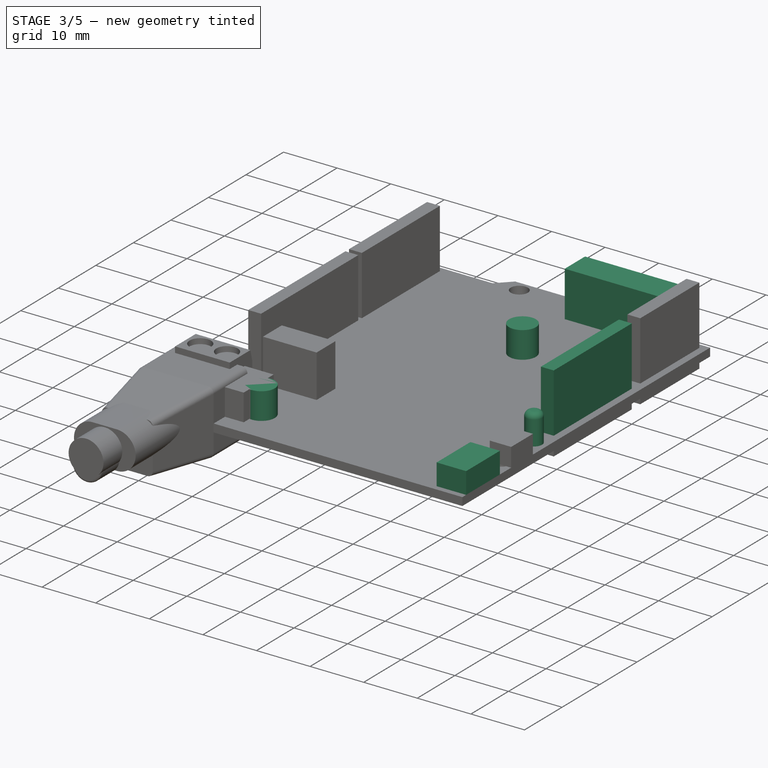
[diagram: stage 3 of 5 — iso view after this stage's code; geometry added in this stage tinted green]
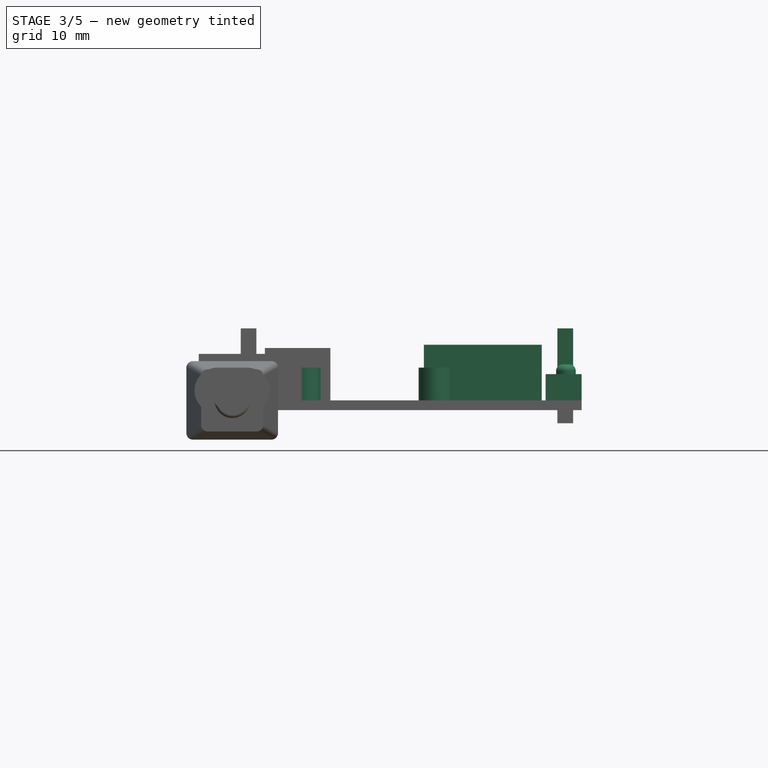
[diagram: stage 3 of 5 — front view after this stage's code; geometry added in this stage tinted green]
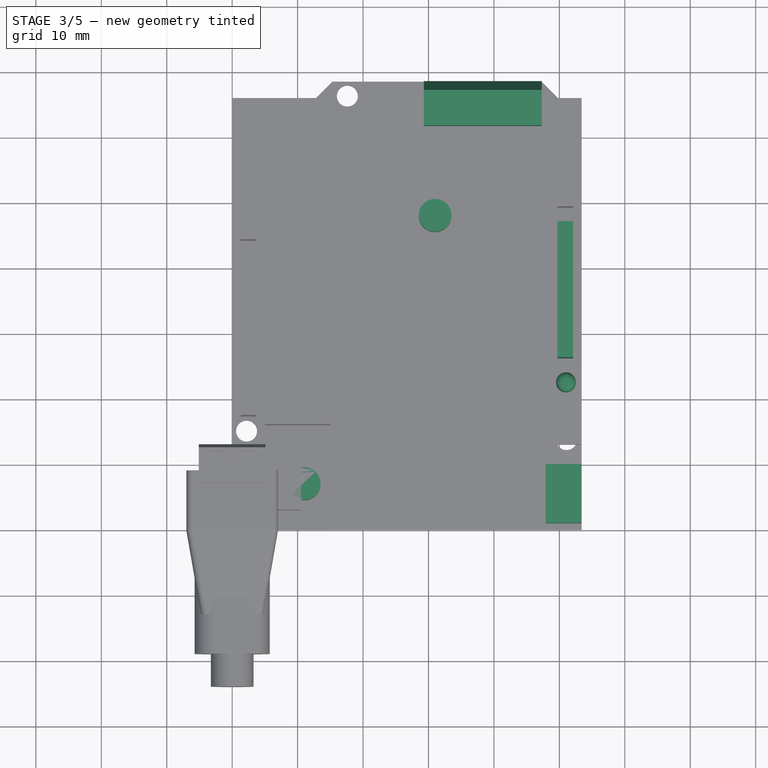
[diagram: stage 3 of 5 — top view after this stage's code; geometry added in this stage tinted green]
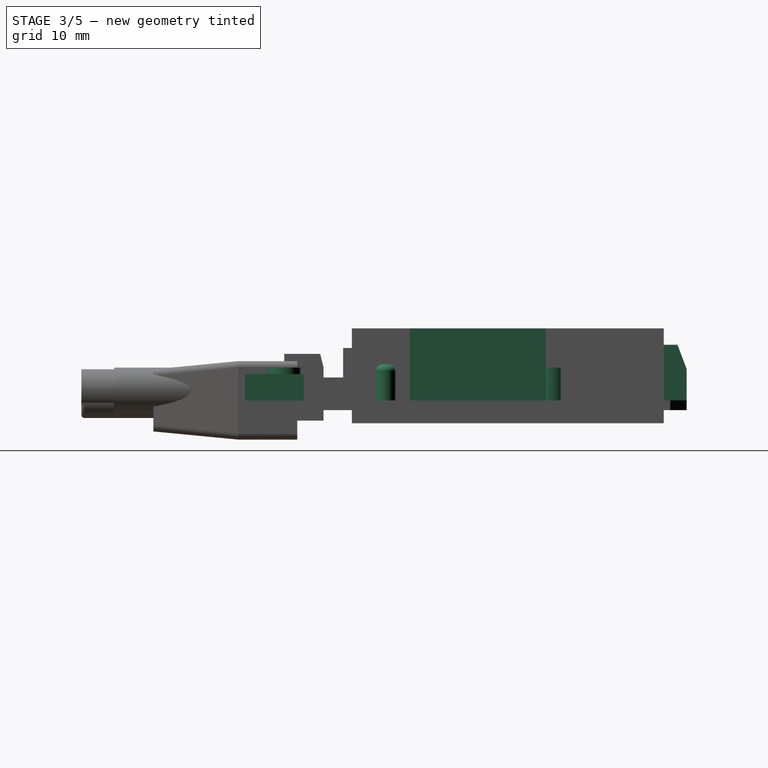
[diagram: stage 3 of 5 — right view after this stage's code; geometry added in this stage tinted green]
FEATURE [Sketcher::SketchObject] Sketch014
  FullyConstrained = true
  MapMode = 5
  Support = -> [XY_Plane025]
  sketch-geometry (4):
    g0: LineSegment StartX=49.7 StartY=65 StartZ=0 EndX=52.1 EndY=65 EndZ=0
    g1: LineSegment StartX=52.1 StartY=65 StartZ=0 EndX=52.1 EndY=49.25 EndZ=0
    g2: LineSegment StartX=52.1 StartY=49.25 StartZ=0 EndX=49.7 EndY=49.25 EndZ=0
    g3: LineSegment StartX=49.7 StartY=49.25 StartZ=0 EndX=49.7 EndY=65 EndZ=0
  constraints (12):
    c: Coincident(g0,g1)
    c: Coincident(g1,g2)
    c: Coincident(g2,g3)
    c: Coincident(g3,g0)
    c: Horizontal(g0)
    c: Horizontal(g2)
    c: Vertical(g1)
    c: Vertical(g3)
    c: DistanceX(g0,g0) = 2.4
    c: DistanceX(g-1,g1) = 52.1
    c: DistanceY(g-1,g0) = 65
    c: DistanceY(g1,g0) = 15.75
FEATURE [PartDesign::Pad] Pad015
  Direction = (1,1,1)
  Length = 8.5
  Length2 = 100
  Profile = -> Sketch014
  Type = 0
FEATURE [Sketcher::SketchObject] Sketch015
  FullyConstrained = true
  MapMode = 5
  Support = -> [XY_Plane028]
  sketch-geometry (4):
    g0: LineSegment StartX=29.3 StartY=68.5 StartZ=0 EndX=47.3 EndY=68.5 EndZ=0
    g1: LineSegment StartX=47.3 StartY=68.5 StartZ=0 EndX=47.3 EndY=61.7 EndZ=0
    g2: LineSegment StartX=47.3 StartY=61.7 StartZ=0 EndX=29.3 EndY=61.7 EndZ=0
    g3: LineSegment StartX=29.3 StartY=61.7 StartZ=0 EndX=29.3 EndY=68.5 EndZ=0
  constraints (12):
    c: Coincident(g0,g1)
    c: Coincident(g1,g2)
    c: Coincident(g2,g3)
    c: Coincident(g3,g0)
    c: Horizontal(g0)
    c: Horizontal(g2)
    c: Vertical(g1)
    c: Vertical(g3)
    c: DistanceX(g0,g0) = 18
    c: DistanceY(g1,g0) = 6.8
    c: DistanceY(g-1,g0) = 68.5
    c: DistanceX(g-1,g0) = 47.3
FEATURE [PartDesign::Pad] Pad006
  Direction = (1,1,1)
  Length = 8.5
  Length2 = 100
  Profile = -> Sketch015
  Type = 0
FEATURE [PartDesign::Chamfer] Chamfer002
  Angle = 45
  Base = -> Pad006 [Edge4]
  BaseFeature = -> Pad006
  ChamferType = 1
  FlipDirection = false
  Size = 3.7
  Size2 = 1.4
  SupportTransform = false
FEATURE [Sketcher::SketchObject] Sketch025
  FullyConstrained = true
  MapMode = 5
  Support = -> [XY_Plane015]
  sketch-geometry (1):
    g0: Circle CenterX=11 CenterY=7 CenterZ=0 NormalX=0 NormalY=0 NormalZ=1 AngleXU=0 Radius=2.5
  constraints (3):
    c: Diameter(g0) = 5
    c: DistanceX(g-1,g0) = 11
    c: DistanceY(g-1,g0) = 7
FEATURE [PartDesign::Pad] Pad019
  Direction = (1,1,1)
  Length = 5
  Length2 = 100
  Profile = -> Sketch025
  Type = 0
FEATURE [Sketcher::SketchObject] Sketch027
  FullyConstrained = true
  MapMode = 5
  Support = -> [XY_Plane017]
  sketch-geometry (1):
    g0: Circle CenterX=31 CenterY=48 CenterZ=0 NormalX=0 NormalY=0 NormalZ=1 AngleXU=0 Radius=2.5
  constraints (3):
    c: Diameter(g0) = 5
    c: DistanceX(g-1,g0) = 31
    c: DistanceY(g-1,g0) = 48
FEATURE [PartDesign::Pad] Pad022
  Direction = (1,1,1)
  Length = 5
  Length2 = 100
  Profile = -> Sketch027
  Type = 0
FEATURE [Sketcher::SketchObject] Sketch040
  FullyConstrained = true
  MapMode = 5
  Support = -> [XY_Plane055]
  sketch-geometry (4):
    g0: LineSegment StartX=49.7 StartY=47 StartZ=0 EndX=52.1 EndY=47 EndZ=0
    g1: LineSegment StartX=52.1 StartY=47 StartZ=0 EndX=52.1 EndY=26.2 EndZ=0
    g2: LineSegment StartX=52.1 StartY=26.2 StartZ=0 EndX=49.7 EndY=26.2 EndZ=0
    g3: LineSegment StartX=49.7 StartY=26.2 StartZ=0 EndX=49.7 EndY=47 EndZ=0
  constraints (12):
    c: Coincident(g0,g1)
    c: Coincident(g1,g2)
    c: Coincident(g2,g3)
    c: Coincident(g3,g0)
    c: Horizontal(g0)
    c: Horizontal(g2)
    c: Vertical(g1)
    c: Vertical(g3)
    c: DistanceX(g0,g0) = 2.4
    c: DistanceX(g-1,g1) = 52.1
    c: DistanceY(g2,g0) = 20.8
    c: DistanceY(g-1,g0) = 47
FEATURE [PartDesign::Pad] Pad034
  Direction = (1,1,1)
  Length = 11
  Length2 = 100
  Profile = -> Sketch040
  Type = 0
FEATURE [PartDesign::Body] Body031  label="Header4_6pin001"
  Group = -> [Sketch042,Pad038]
  Origin = -> Origin044
  Placement = pos=(-26.7,0,0) rot=(0,0,1;0rad)
  Tip = -> Pad038
FEATURE [Sketcher::SketchObject] Sketch043
  FullyConstrained = true
  MapMode = 5
  Support = -> [XY_Plane034]
  sketch-geometry (1):
    g0: Circle CenterX=51 CenterY=22.5 CenterZ=0 NormalX=0 NormalY=0 NormalZ=1 AngleXU=0 Radius=1.5
  constraints (3):
    c: Diameter(g0) = 3
    c: DistanceX(g-1,g0) = 51
    c: DistanceY(g-1,g0) = 22.5
FEATURE [PartDesign::Pad] Pad035
  Direction = (1,1,1)
  Length = 5.5
  Length2 = 100
  Profile = -> Sketch043
  Type = 0
FEATURE [PartDesign::Fillet] Fillet
  Base = -> Pad035 [Edge3]
  BaseFeature = -> Pad035
  Radius = 1
  SupportTransform = false
FEATURE [PartDesign::Body] Body029  label="PowerLED"
  Group = -> [Sketch043,Pad035,Fillet]
  Origin = -> Origin057
  Placement = pos=(-26.7,0,0) rot=(0,0,1;0rad)
  Tip = -> Fillet
FEATURE [Sketcher::SketchObject] Sketch044
  FullyConstrained = true
  MapMode = 5
  Support = -> [XY_Plane036]
  sketch-geometry (4):
    g0: LineSegment StartX=47.9 StartY=10 StartZ=0 EndX=53.4 EndY=10 EndZ=0
    g1: LineSegment StartX=53.4 StartY=10 StartZ=0 EndX=53.4 EndY=1 EndZ=0
    g2: LineSegment StartX=53.4 StartY=1 StartZ=0 EndX=47.9 EndY=1 EndZ=0
    g3: LineSegment StartX=47.9 StartY=1 StartZ=0 EndX=47.9 EndY=10 EndZ=0
  constraints (12):
    c: Coincident(g0,g1)
    c: Coincident(g1,g2)
    c: Coincident(g2,g3)
    c: Coincident(g3,g0)
    c: Horizontal(g0)
    c: Horizontal(g2)
    c: Vertical(g1)
    c: Vertical(g3)
    c: Distance(g1) = 9
    c: Distance(g0) = 5.5
    c: DistanceY(g-1,g0) = 10
    c: DistanceX(g-1,g1) = 53.4
FEATURE [PartDesign::Pad] Pad036
  Direction = (1,1,1)
  Length = 4
  Length2 = 100
  Profile = -> Sketch044
  Type = 0
FEATURE [PartDesign::FeatureBase] Clone007
  BaseFeature = -> Body051
FEATURE [PartDesign::FeatureBase] Clone006
  BaseFeature = -> Body051
FEATURE [PartDesign::FeatureBase] Clone008
  BaseFeature = -> Body051
FEATURE [PartDesign::FeatureBase] Clone013
  BaseFeature = -> Body051
FEATURE [PartDesign::FeatureBase] Clone012
  BaseFeature = -> Body051
FEATURE [PartDesign::FeatureBase] Clone010
  BaseFeature = -> Body051
FEATURE [PartDesign::FeatureBase] Clone009
  BaseFeature = -> Body051
FEATURE [PartDesign::FeatureBase] Clone011
  BaseFeature = -> Body051
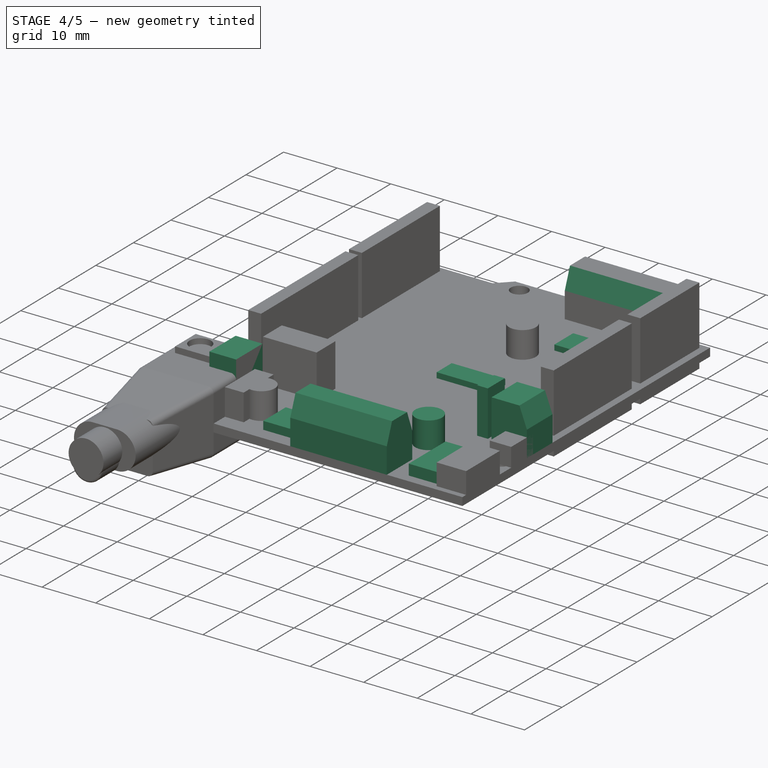
[diagram: stage 4 of 5 — iso view after this stage's code; geometry added in this stage tinted green]
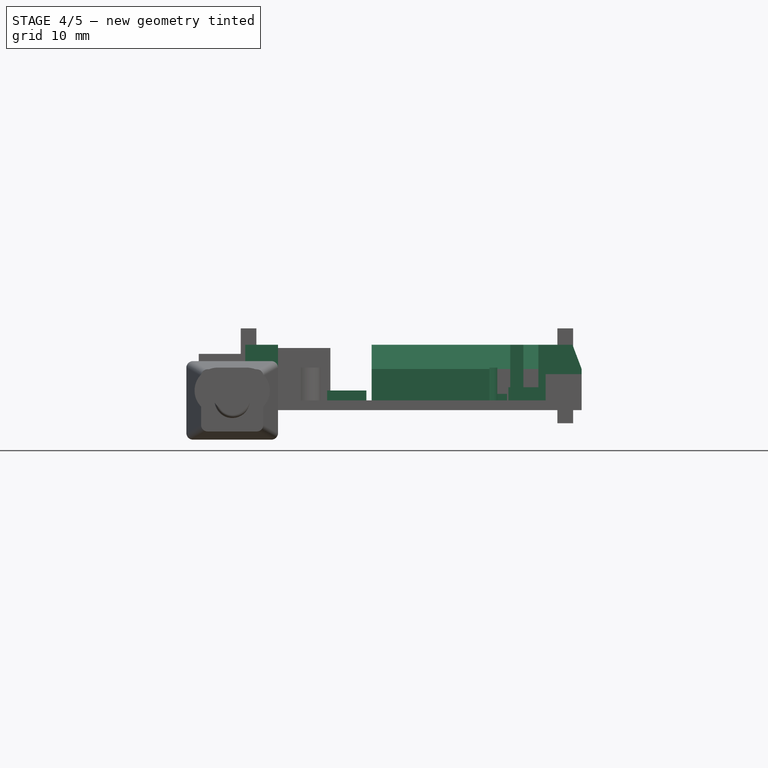
[diagram: stage 4 of 5 — front view after this stage's code; geometry added in this stage tinted green]
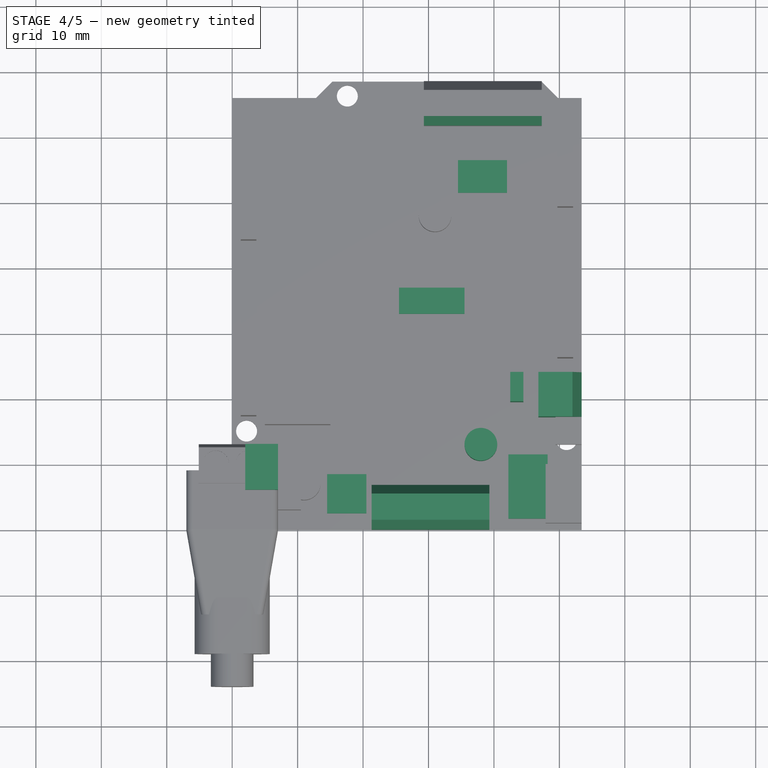
[diagram: stage 4 of 5 — top view after this stage's code; geometry added in this stage tinted green]
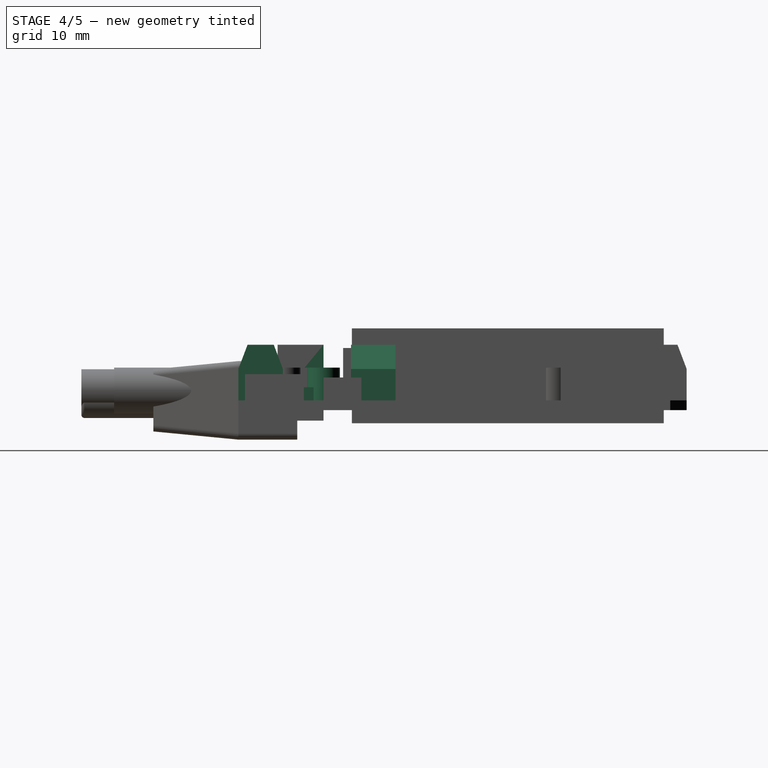
[diagram: stage 4 of 5 — right view after this stage's code; geometry added in this stage tinted green]
FEATURE [Sketcher::SketchObject] Sketch013
  FullyConstrained = false
  MapMode = 5
  Support = -> [XY_Plane027]
  sketch-geometry (5):
    g0: LineSegment StartX=21.3 StartY=6.8 StartZ=0 EndX=39.3 EndY=6.8 EndZ=0
    g1: LineSegment StartX=39.3 StartY=6.8 StartZ=0 EndX=39.3 EndY=0 EndZ=0
    g2: LineSegment StartX=39.3 StartY=0 StartZ=0 EndX=21.3 EndY=0 EndZ=0
    g3: LineSegment StartX=21.3 StartY=0 StartZ=0 EndX=21.3 EndY=6.8 EndZ=0
    g4: LineSegment StartX=0 StartY=0 StartZ=0 EndX=62.8134 EndY=0 EndZ=0
  constraints (14):
    c: Coincident(g0,g1)
    c: Coincident(g1,g2)
    c: Coincident(g2,g3)
    c: Coincident(g3,g0)
    c: Horizontal(g0)
    c: Horizontal(g2)
    c: Vertical(g1)
    c: Vertical(g3)
    c: DistanceY(g1,g0) = 6.8
    c: DistanceX(g0,g0) = 18
    c: DistanceX(g-1,g1) = 39.3
    c: Coincident(g4,g-1)
    c: PointOnObject(g4,g-1)
    c: PointOnObject(g2,g4)
FEATURE [PartDesign::Pad] Pad017
  Direction = (1,1,1)
  Length = 8.5
  Length2 = 100
  Profile = -> Sketch013
  Type = 0
FEATURE [Sketcher::SketchObject] Sketch016
  FullyConstrained = true
  MapMode = 5
  Support = -> [XY_Plane029]
  sketch-geometry (4):
    g0: LineSegment StartX=46.8 StartY=24 StartZ=0 EndX=53.4 EndY=24 EndZ=0
    g1: LineSegment StartX=53.4 StartY=24 StartZ=0 EndX=53.4 EndY=17.2 EndZ=0
    g2: LineSegment StartX=53.4 StartY=17.2 StartZ=0 EndX=46.8 EndY=17.2 EndZ=0
    g3: LineSegment StartX=46.8 StartY=17.2 StartZ=0 EndX=46.8 EndY=24 EndZ=0
  constraints (12):
    c: Coincident(g0,g1)
    c: Coincident(g1,g2)
    c: Coincident(g2,g3)
    c: Coincident(g3,g0)
    c: Horizontal(g0)
    c: Horizontal(g2)
    c: Vertical(g1)
    c: Vertical(g3)
    c: DistanceY(g1,g0) = 6.8
    c: DistanceX(g0,g0) = 6.6
    c: DistanceX(g-1,g1) = 53.4
    c: DistanceY(g-1,g0) = 24
FEATURE [PartDesign::Pad] Pad007
  Direction = (1,1,1)
  Length = 8.5
  Length2 = 100
  Profile = -> Sketch016
  Type = 0
FEATURE [Sketcher::SketchObject] Sketch017
  FullyConstrained = true
  MapMode = 5
  Support = -> [XY_Plane009]
  sketch-geometry (4):
    g0: LineSegment StartX=14.5 StartY=8.5 StartZ=0 EndX=20.5 EndY=8.5 EndZ=0
    g1: LineSegment StartX=20.5 StartY=8.5 StartZ=0 EndX=20.5 EndY=2.5 EndZ=0
    g2: LineSegment StartX=20.5 StartY=2.5 StartZ=0 EndX=14.5 EndY=2.5 EndZ=0
    g3: LineSegment StartX=14.5 StartY=2.5 StartZ=0 EndX=14.5 EndY=8.5 EndZ=0
  constraints (12):
    c: Coincident(g0,g1)
    c: Coincident(g1,g2)
    c: Coincident(g2,g3)
    c: Coincident(g3,g0)
    c: Horizontal(g0)
    c: Horizontal(g2)
    c: Vertical(g1)
    c: Vertical(g3)
    c: Equal(g0,g1)
    c: Distance(g1) = 6
    c: DistanceY(g-1,g0) = 8.5
    c: DistanceX(g-1,g2) = 14.5
FEATURE [PartDesign::Pad] Pad012
  Direction = (1,1,1)
  Length = 1.5
  Length2 = 100
  Profile = -> Sketch017
  Type = 0
FEATURE [Sketcher::SketchObject] Sketch019
  FullyConstrained = true
  MapMode = 5
  Support = -> [XY_Plane011]
  sketch-geometry (4):
    g0: LineSegment StartX=34.5 StartY=56.5 StartZ=0 EndX=42 EndY=56.5 EndZ=0
    g1: LineSegment StartX=42 StartY=56.5 StartZ=0 EndX=42 EndY=51.5 EndZ=0
    g2: LineSegment StartX=42 StartY=51.5 StartZ=0 EndX=34.5 EndY=51.5 EndZ=0
    g3: LineSegment StartX=34.5 StartY=51.5 StartZ=0 EndX=34.5 EndY=56.5 EndZ=0
  constraints (12):
    c: Coincident(g0,g1)
    c: Coincident(g1,g2)
    c: Coincident(g2,g3)
    c: Coincident(g3,g0)
    c: Horizontal(g0)
    c: Horizontal(g2)
    c: Vertical(g1)
    c: Vertical(g3)
    c: Distance(g1) = 5
    c: Distance(g0) = 7.5
    c: DistanceX(g-1,g0) = 42
    c: DistanceY(g-1,g0) = 56.5
FEATURE [PartDesign::Pad] Pad010
  Direction = (1,1,1)
  Length = 1
  Length2 = 100
  Profile = -> Sketch019
  Type = 0
FEATURE [Sketcher::SketchObject] Sketch020
  FullyConstrained = true
  MapMode = 5
  Support = -> [XY_Plane010]
  sketch-geometry (4):
    g0: LineSegment StartX=42.2 StartY=11.5 StartZ=0 EndX=48.2 EndY=11.5 EndZ=0
    g1: LineSegment StartX=48.2 StartY=11.5 StartZ=0 EndX=48.2 EndY=1.7 EndZ=0
    g2: LineSegment StartX=48.2 StartY=1.7 StartZ=0 EndX=42.2 EndY=1.7 EndZ=0
    g3: LineSegment StartX=42.2 StartY=1.7 StartZ=0 EndX=42.2 EndY=11.5 EndZ=0
  constraints (12):
    c: Coincident(g0,g1)
    c: Coincident(g1,g2)
    c: Coincident(g2,g3)
    c: Coincident(g3,g0)
    c: Horizontal(g0)
    c: Horizontal(g2)
    c: Vertical(g1)
    c: Vertical(g3)
    c: DistanceY(g1,g0) = 9.8
    c: DistanceX(g0,g0) = 6
    c: DistanceY(g-1,g0) = 11.5
    c: DistanceX(g-1,g1) = 48.2
FEATURE [PartDesign::Pad] Pad009
  Direction = (1,1,1)
  Length = 2
  Length2 = 100
  Profile = -> Sketch020
  Type = 0
FEATURE [Sketcher::SketchObject] Sketch021
  FullyConstrained = true
  MapMode = 5
  Support = -> [XY_Plane013]
  sketch-geometry (4):
    g0: LineSegment StartX=25.5 StartY=37 StartZ=0 EndX=35.5 EndY=37 EndZ=0
    g1: LineSegment StartX=35.5 StartY=37 StartZ=0 EndX=35.5 EndY=33 EndZ=0
    g2: LineSegment StartX=35.5 StartY=33 StartZ=0 EndX=25.5 EndY=33 EndZ=0
    g3: LineSegment StartX=25.5 StartY=33 StartZ=0 EndX=25.5 EndY=37 EndZ=0
  constraints (12):
    c: Coincident(g0,g1)
    c: Coincident(g1,g2)
    c: Coincident(g2,g3)
    c: Coincident(g3,g0)
    c: Horizontal(g0)
    c: Horizontal(g2)
    c: Vertical(g1)
    c: Vertical(g3)
    c: Distance(g0) = 10
    c: Distance(g1) = 4
    c: DistanceX(g-1,g0) = 35.5
    c: DistanceY(g-1,g0) = 37
FEATURE [PartDesign::Pad] Pad018
  Direction = (1,1,1)
  Length = 1
  Length2 = 100
  Profile = -> Sketch021
  Type = 0
FEATURE [Sketcher::SketchObject] Sketch022
  FullyConstrained = true
  MapMode = 5
  Support = -> [XY_Plane014]
  sketch-geometry (4):
    g0: LineSegment StartX=2 StartY=13 StartZ=0 EndX=7 EndY=13 EndZ=0
    g1: LineSegment StartX=7 StartY=13 StartZ=0 EndX=7 EndY=6 EndZ=0
    g2: LineSegment StartX=7 StartY=6 StartZ=0 EndX=2 EndY=6 EndZ=0
    g3: LineSegment StartX=2 StartY=6 StartZ=0 EndX=2 EndY=13 EndZ=0
  constraints (12):
    c: Coincident(g0,g1)
    c: Coincident(g1,g2)
    c: Coincident(g2,g3)
    c: Coincident(g3,g0)
    c: Horizontal(g0)
    c: Horizontal(g2)
    c: Vertical(g1)
    c: Vertical(g3)
    c: Distance(g1) = 7
    c: Distance(g0) = 5
    c: DistanceX(g-1,g1) = 7
    c: DistanceY(g-1,g0) = 13
FEATURE [PartDesign::Pad] Pad013
  Direction = (1,1,1)
  Length = 8.5
  Length2 = 100
  Profile = -> Sketch022
  Type = 0
FEATURE [Sketcher::SketchObject] Sketch023
  FullyConstrained = true
  MapMode = 5
  Support = -> [XY_Plane022]
  sketch-geometry (4):
    g0: LineSegment StartX=49.7 StartY=65 StartZ=0 EndX=52.1 EndY=65 EndZ=0
    g1: LineSegment StartX=52.1 StartY=65 StartZ=0 EndX=52.1 EndY=49.25 EndZ=0
    g2: LineSegment StartX=52.1 StartY=49.25 StartZ=0 EndX=49.7 EndY=49.25 EndZ=0
    g3: LineSegment StartX=49.7 StartY=49.25 StartZ=0 EndX=49.7 EndY=65 EndZ=0
  constraints (12):
    c: Coincident(g0,g1)
    c: Coincident(g1,g2)
    c: Coincident(g2,g3)
    c: Coincident(g3,g0)
    c: Horizontal(g0)
    c: Horizontal(g2)
    c: Vertical(g1)
    c: Vertical(g3)
    c: Distance(g0) = 2.4
    c: DistanceX(g-1,g1) = 52.1
    c: DistanceY(g-1,g0) = 65
    c: Distance(g3) = 15.75
FEATURE [Sketcher::SketchObject] Sketch024
  FullyConstrained = true
  MapMode = 5
  Support = -> [XY_Plane018]
  sketch-geometry (4):
    g0: LineSegment StartX=44.5 StartY=24 StartZ=0 EndX=42.5 EndY=24 EndZ=0
    g1: LineSegment StartX=42.5 StartY=24 StartZ=0 EndX=42.5 EndY=19.5 EndZ=0
    g2: LineSegment StartX=42.5 StartY=19.5 StartZ=0 EndX=44.5 EndY=19.5 EndZ=0
    g3: LineSegment StartX=44.5 StartY=19.5 StartZ=0 EndX=44.5 EndY=24 EndZ=0
  constraints (12):
    c: Coincident(g0,g1)
    c: Coincident(g1,g2)
    c: Coincident(g2,g3)
    c: Coincident(g3,g0)
    c: Horizontal(g0)
    c: Horizontal(g2)
    c: Vertical(g1)
    c: Vertical(g3)
    c: Distance(g1) = 4.5
    c: Distance(g0) = 2
    c: DistanceY(g-1,g0) = 24
    c: DistanceX(g-1,g0) = 44.5
FEATURE [PartDesign::Pad] Pad024
  Direction = (1,1,1)
  Length = 8.5
  Length2 = 100
  Profile = -> Sketch024
  Type = 0
FEATURE [Sketcher::SketchObject] Sketch026
  FullyConstrained = true
  MapMode = 5
  Support = -> [XY_Plane016]
  sketch-geometry (1):
    g0: Circle CenterX=38 CenterY=13 CenterZ=0 NormalX=0 NormalY=0 NormalZ=1 AngleXU=0 Radius=2.5
  constraints (3):
    c: Diameter(g0) = 5
    c: DistanceX(g-1,g0) = 38
    c: DistanceY(g-1,g0) = 13
FEATURE [PartDesign::Pad] Pad020
  Direction = (1,1,1)
  Length = 5
  Length2 = 100
  Profile = -> Sketch026
  Type = 0
FEATURE [Sketcher::SketchObject] Sketch028
  FullyConstrained = true
  MapMode = 5
  Support = -> [XY_Plane020]
  sketch-geometry (4):
    g0: LineSegment StartX=1.3 StartY=65 StartZ=0 EndX=3.7 EndY=65 EndZ=0
    g1: LineSegment StartX=3.7 StartY=65 StartZ=0 EndX=3.7 EndY=44.2 EndZ=0
    g2: LineSegment StartX=3.7 StartY=44.2 StartZ=0 EndX=1.3 EndY=44.2 EndZ=0
    g3: LineSegment StartX=1.3 StartY=44.2 StartZ=0 EndX=1.3 EndY=65 EndZ=0
  constraints (12):
    c: Coincident(g0,g1)
    c: Coincident(g1,g2)
    c: Coincident(g2,g3)
    c: Coincident(g3,g0)
    c: Horizontal(g0)
    c: Horizontal(g2)
    c: Vertical(g1)
    c: Vertical(g3)
    c: Distance(g0) = 2.4
    c: DistanceX(g-1,g0) = 1.3
    c: Distance(g1) = 20.8
    c: DistanceY(g-1,g0) = 65
FEATURE [Sketcher::SketchObject] Sketch029
  FullyConstrained = true
  MapMode = 5
  Support = -> [XY_Plane021]
  sketch-geometry (4):
    g0: LineSegment StartX=49.7 StartY=47 StartZ=0 EndX=52.1 EndY=47 EndZ=0
    g1: LineSegment StartX=52.1 StartY=47 StartZ=0 EndX=52.1 EndY=26.2 EndZ=0
    g2: LineSegment StartX=52.1 StartY=26.2 StartZ=0 EndX=49.7 EndY=26.2 EndZ=0
    g3: LineSegment StartX=49.7 StartY=26.2 StartZ=0 EndX=49.7 EndY=47 EndZ=0
  constraints (12):
    c: Coincident(g0,g1)
    c: Coincident(g1,g2)
    c: Coincident(g2,g3)
    c: Coincident(g3,g0)
    c: Horizontal(g0)
    c: Horizontal(g2)
    c: Vertical(g1)
    c: Vertical(g3)
    c: Distance(g0) = 2.4
    c: DistanceX(g-1,g1) = 52.1
    c: Distance(g1) = 20.8
    c: DistanceY(g-1,g0) = 47
FEATURE [Sketcher::SketchObject] Sketch030
  FullyConstrained = true
  MapMode = 5
  Support = -> [XY_Plane019]
  sketch-geometry (4):
    g0: LineSegment StartX=1.3 StartY=43.25 StartZ=0 EndX=3.7 EndY=43.25 EndZ=0
    g1: LineSegment StartX=3.7 StartY=43.25 StartZ=0 EndX=3.7 EndY=17.35 EndZ=0
    g2: LineSegment StartX=3.7 StartY=17.35 StartZ=0 EndX=1.3 EndY=17.35 EndZ=0
    g3: LineSegment StartX=1.3 StartY=17.35 StartZ=0 EndX=1.3 EndY=43.25 EndZ=0
  constraints (12):
    c: Coincident(g0,g1)
    c: Coincident(g1,g2)
    c: Coincident(g2,g3)
    c: Coincident(g3,g0)
    c: Horizontal(g0)
    c: Horizontal(g2)
    c: Vertical(g1)
    c: Vertical(g3)
    c: Distance(g0) = 2.4
    c: DistanceX(g-1,g2) = 1.3
    c: DistanceY(g1,g0) = 25.9
    c: DistanceY(g-1,g0) = 43.25
FEATURE [PartDesign::Pad] Pad023
  Direction = (1,1,1)
  Length = 3.5
  Length2 = 100
  Profile = -> Sketch030
  Reversed = true
  Type = 0
FEATURE [PartDesign::Chamfer] Chamfer004
  Angle = 45
  Base = -> Pad007 [Edge7]
  BaseFeature = -> Pad007
  ChamferType = 1
  FlipDirection = false
  Size = 3.7
  Size2 = 1.4
  SupportTransform = false
FEATURE [PartDesign::Chamfer] Chamfer003
  Angle = 45
  Base = -> Chamfer002 [Edge15]
  BaseFeature = -> Chamfer002
  ChamferType = 1
  FlipDirection = false
  Size = 1.4
  Size2 = 3.7
  SupportTransform = false
FEATURE [PartDesign::Pad] Pad026
  Direction = (1,1,1)
  Length = 3.5
  Length2 = 100
  Profile = -> Sketch029
  Reversed = true
  Type = 0
FEATURE [PartDesign::Pad] Pad027
  Direction = (1,1,1)
  Length = 3.5
  Length2 = 100
  Profile = -> Sketch023
  Reversed = true
  Type = 0
FEATURE [PartDesign::Body] Body006  label="Header3_8pin"
  Group = -> [Sketch008,Pad008]
  Origin = -> Origin012
  Placement = pos=(-26.7,0,0) rot=(0,0,1;0rad)
  Tip = -> Pad008
FEATURE [PartDesign::Chamfer] Chamfer
  Angle = 45
  Base = -> Pad017 [Edge10]
  BaseFeature = -> Pad017
  ChamferType = 1
  FlipDirection = false
  Size = 3.7
  Size2 = 1.4
  SupportTransform = false
FEATURE [PartDesign::Chamfer] Chamfer001
  Angle = 45
  Base = -> Chamfer [Edge13]
  BaseFeature = -> Chamfer
  ChamferType = 1
  FlipDirection = false
  Size = 1.4
  Size2 = 3.7
  SupportTransform = false
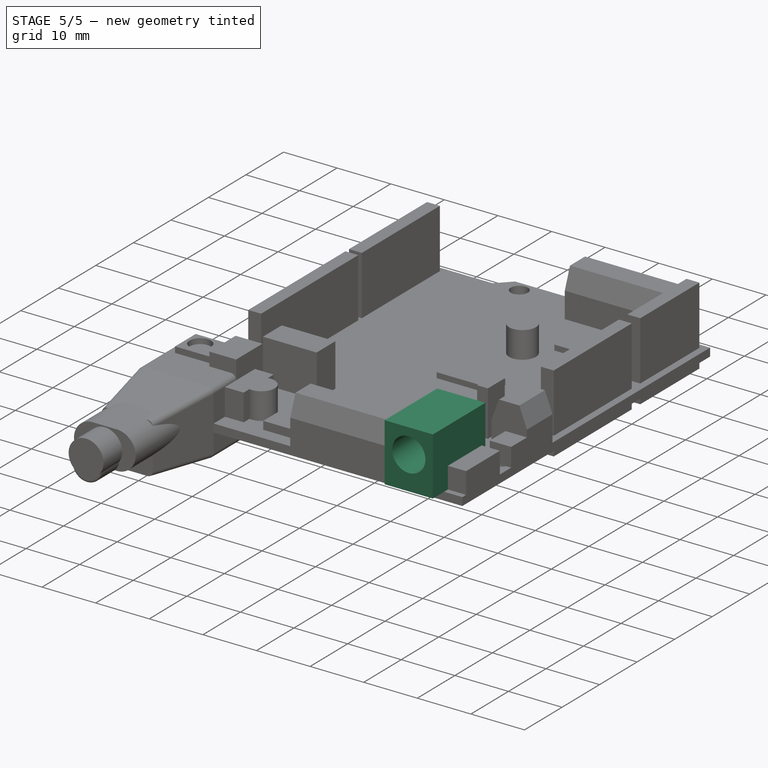
[diagram: stage 5 of 5 — iso view after this stage's code; geometry added in this stage tinted green]
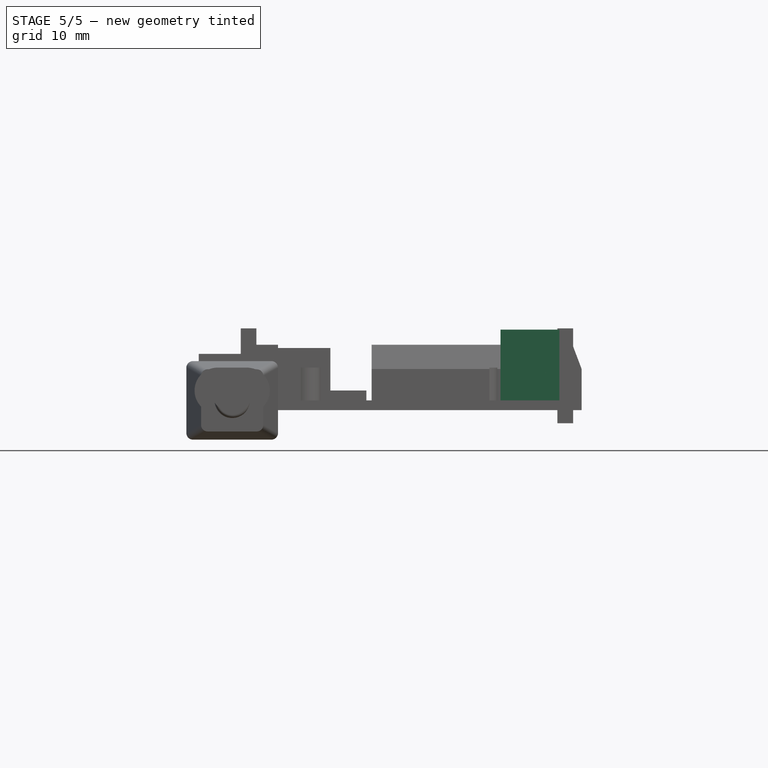
[diagram: stage 5 of 5 — front view after this stage's code; geometry added in this stage tinted green]
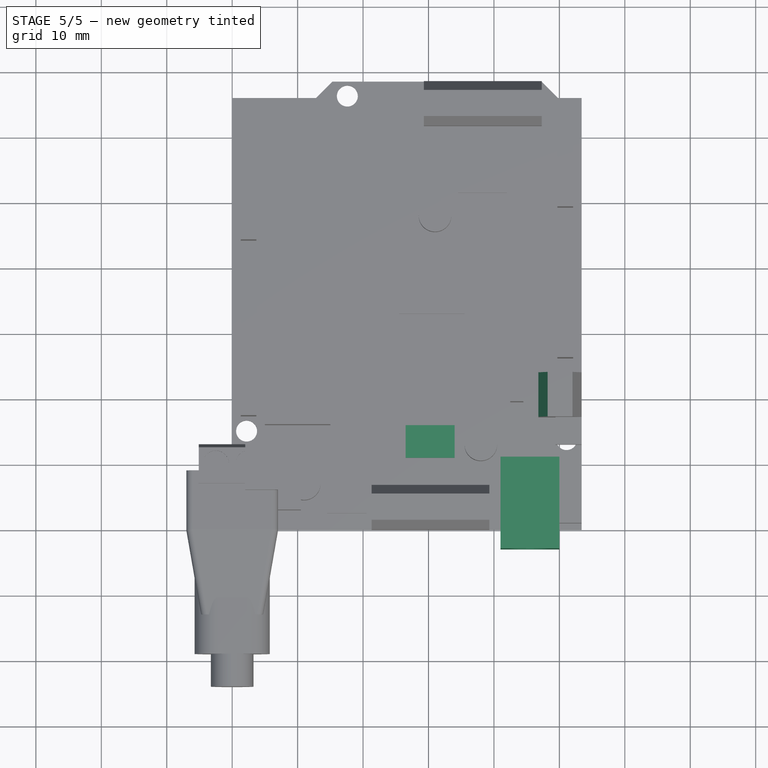
[diagram: stage 5 of 5 — top view after this stage's code; geometry added in this stage tinted green]
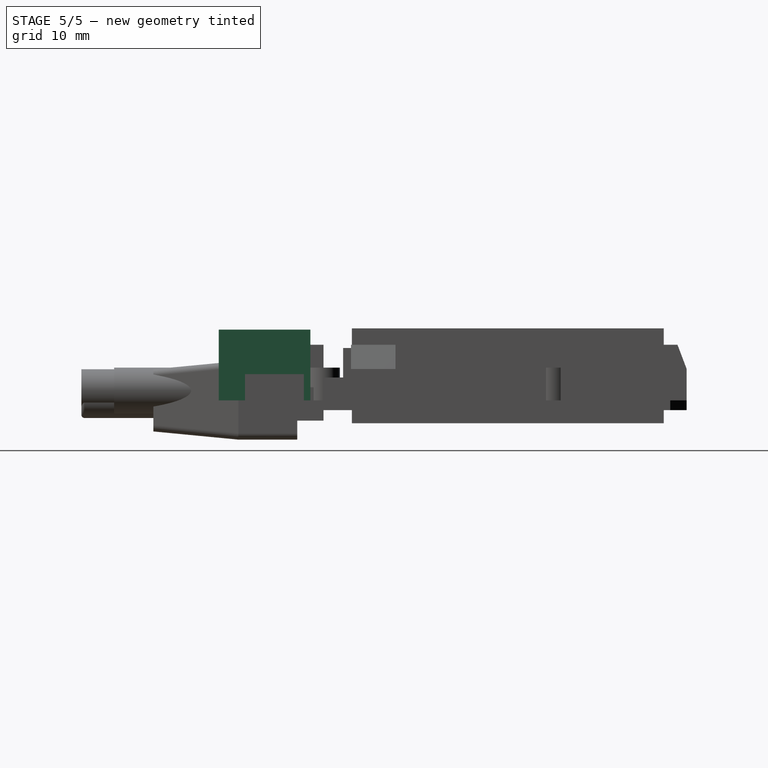
[diagram: stage 5 of 5 — right view after this stage's code; geometry added in this stage tinted green]
FEATURE [Sketcher::SketchObject] Sketch
  FullyConstrained = true
  MapMode = 5
  Support = -> [XY_Plane001]
  sketch-geometry (12):
    g0: LineSegment StartX=53.4 StartY=65.8 StartZ=0 EndX=53.4 EndY=0 EndZ=0
    g1: LineSegment StartX=0 StartY=0 StartZ=0 EndX=0 EndY=65.8 EndZ=0
    g2: LineSegment StartX=50 StartY=65.8 StartZ=0 EndX=47.3 EndY=68.5 EndZ=0
    g3: LineSegment StartX=47.3 StartY=68.5 StartZ=0 EndX=15.3 EndY=68.5 EndZ=0
    g4: LineSegment StartX=15.3 StartY=68.5 StartZ=0 EndX=12.6 EndY=65.8 EndZ=0
    g5: LineSegment StartX=0 StartY=65.8 StartZ=0 EndX=12.6 EndY=65.8 EndZ=0
    g6: LineSegment StartX=50 StartY=65.8 StartZ=0 EndX=53.4 EndY=65.8 EndZ=0
    g7: LineSegment StartX=31.2 StartY=0 StartZ=0 EndX=32.2 EndY=1 EndZ=0
    g8: LineSegment StartX=32.2 StartY=1 StartZ=0 EndX=37.9 EndY=1 EndZ=0
    g9: LineSegment StartX=37.9 StartY=1 StartZ=0 EndX=38.9 EndY=2e-16 EndZ=0
    g10: LineSegment StartX=0 StartY=0 StartZ=0 EndX=31.2 EndY=0 EndZ=0
    g11: LineSegment StartX=38.9 StartY=2e-16 StartZ=0 EndX=53.4 EndY=2e-16 EndZ=0
  constraints (36):
    c: Vertical(g0)
    c: Vertical(g1)
    c: Distance(g0) = 65.8
    c: Coincident(g3,g2)
    c: Horizontal(g3)
    c: Coincident(g4,g3)
    c: Equal(g4,g2)
    c: DistanceY(g0,g2) = 2.7
    c: Distance(g3) = 32
    c: Coincident(g5,g1)
    c: Coincident(g5,g4)
    c: Horizontal(g5)
    c: Coincident(g6,g2)
    c: Coincident(g6,g0)
    c: DistanceX(g1,g0) = 53.4
    c: Angle(g4,g5) = 2.35619
    c: Horizontal(g6)
    c: Angle(g6,g2) = 2.35619
    c: Coincident(g8,g7)
    c: Horizontal(g8)
    c: Coincident(g9,g8)
    c: Coincident(g10,g1)
    c: Coincident(g10,g7)
    c: Horizontal(g10)
    c: Coincident(g11,g9)
    c: Coincident(g11,g0)
    c: Horizontal(g11)
    c: Angle(g7,g10) = 2.35619
    c: Angle(g11,g9) = 2.35619
    c: Equal(g7,g9)
    c: DistanceX(g9,g0) = 14.5
    c: DistanceX(g7,g8) = 5.7
    c: DistanceY(g9,g8) = 1
    c: PointOnObject(g-1,g10)
    c: PointOnObject(g1,g-2)
    c: DistanceX(g1,g3) = 15.3
FEATURE [PartDesign::Pad] Pad
  Direction = (1,1,1)
  Length = 1.5
  Length2 = 100
  Profile = -> Sketch
  Reversed = true
  Type = 0
FEATURE [Sketcher::SketchObject] Sketch001
  FullyConstrained = true
  MapMode = 5
  Support = -> [XY_Plane001]
  sketch-geometry (5):
    g0: Circle CenterX=17.6 CenterY=66.3 CenterZ=0 NormalX=0 NormalY=0 NormalZ=1 AngleXU=0 Radius=1.6
    g1: Circle CenterX=45.3 CenterY=66.3 CenterZ=0 NormalX=0 NormalY=0 NormalZ=1 AngleXU=0 Radius=1.6
    g2: Circle CenterX=2.2 CenterY=15.1 CenterZ=0 NormalX=0 NormalY=0 NormalZ=1 AngleXU=0 Radius=1.6
    g3: Circle CenterX=51.1 CenterY=13.8 CenterZ=0 NormalX=0 NormalY=0 NormalZ=1 AngleXU=0 Radius=1.6
    g4: LineSegment StartX=17.6 StartY=66.3 StartZ=0 EndX=45.3 EndY=66.3 EndZ=0
  constraints (14):
    c: Equal(g0,g1)
    c: Equal(g3,g2)
    c: Diameter(g1) = 3.2
    c: Equal(g0,g2)
    c: Coincident(g4,g0)
    c: Coincident(g4,g1)
    c: Horizontal(g4)
    c: DistanceY(g-1,g3) = 13.8
    c: DistanceY(g-1,g2) = 15.1
    c: DistanceX(g-1,g3) = 51.1
    c: DistanceX(g-1,g2) = 2.2
    c: DistanceY(g-1,g0) = 66.3
    c: DistanceX(g-1,g0) = 17.6
    c: DistanceX(g0,g1) = 27.7
FEATURE [PartDesign::Pocket] Pocket
  BaseFeature = -> Pad
  Length = 5
  Length2 = 100
  Profile = -> Sketch001
  Type = 1
FEATURE [PartDesign::Body] Body  label="MainBoard"
  Group = -> [Sketch,Pad,Sketch001,Pocket]
  Origin = -> Origin001
  Placement = pos=(-26.7,0,0) rot=(0,0,1;0rad)
  Tip = -> Pocket
FEATURE [Sketcher::SketchObject] Sketch002
  FullyConstrained = true
  MapMode = 5
  Support = -> [XY_Plane002]
  sketch-geometry (4):
    g0: LineSegment StartX=41 StartY=11 StartZ=0 EndX=50 EndY=11 EndZ=0
    g1: LineSegment StartX=50 StartY=11 StartZ=0 EndX=50 EndY=-3 EndZ=0
    g2: LineSegment StartX=50 StartY=-3 StartZ=0 EndX=41 EndY=-3 EndZ=0
    g3: LineSegment StartX=41 StartY=-3 StartZ=0 EndX=41 EndY=11 EndZ=0
  constraints (12):
    c: Coincident(g0,g1)
    c: Coincident(g1,g2)
    c: Coincident(g2,g3)
    c: Coincident(g3,g0)
    c: Horizontal(g0)
    c: Horizontal(g2)
    c: Vertical(g1)
    c: Vertical(g3)
    c: Distance(g1) = 14
    c: Distance(g0) = 9
    c: DistanceY(g2,g-1) = 3
    c: DistanceX(g-1,g1) = 50
FEATURE [PartDesign::Pad] Pad001
  Direction = (1,1,1)
  Length = 10.8
  Length2 = 100
  Profile = -> Sketch002
  Type = 0
FEATURE [Sketcher::SketchObject] Sketch003
  FullyConstrained = true
  MapMode = 5
  Placement = pos=(0,-3,0) rot=(1,0,0;1.5708rad)
  Support = -> [Pad001]
  sketch-geometry (1):
    g0: Circle CenterX=45.5 CenterY=6.2 CenterZ=0 NormalX=0 NormalY=0 NormalZ=1 AngleXU=0 Radius=3.1
  constraints (3):
    c: Diameter(g0) = 6.2
    c: DistanceX(g-1,g0) = 45.5
    c: DistanceY(g-1,g0) = 6.2
FEATURE [PartDesign::Pocket] Pocket001
  BaseFeature = -> Pad001
  Length = 10
  Length2 = 100
  Profile = -> Sketch003
  Type = 0
FEATURE [PartDesign::Body] Body001  label="PowerBarrel"
  Group = -> [Sketch002,Pad001,Sketch003,Pocket001]
  Origin = -> Origin002
  Placement = pos=(-26.7,0,0) rot=(0,0,1;0rad)
  Tip = -> Pocket001
FEATURE [Sketcher::SketchObject] Sketch004
  FullyConstrained = true
  MapMode = 5
  Support = -> [XY_Plane003]
  sketch-geometry (4):
    g0: LineSegment StartX=1.4 StartY=65 StartZ=0 EndX=3.7 EndY=65 EndZ=0
    g1: LineSegment StartX=3.7 StartY=65 StartZ=0 EndX=3.7 EndY=44.5 EndZ=0
    g2: LineSegment StartX=3.7 StartY=44.5 StartZ=0 EndX=1.4 EndY=44.5 EndZ=0
    g3: LineSegment StartX=1.4 StartY=44.5 StartZ=0 EndX=1.4 EndY=65 EndZ=0
  constraints (12):
    c: Coincident(g0,g1)
    c: Coincident(g1,g2)
    c: Coincident(g2,g3)
    c: Coincident(g3,g0)
    c: Horizontal(g0)
    c: Horizontal(g2)
    c: Vertical(g1)
    c: Vertical(g3)
    c: Distance(g0) = 2.3
    c: DistanceY(g-1,g0) = 65
    c: Distance(g3) = 20.5
    c: DistanceX(g-1,g0) = 3.7
FEATURE [PartDesign::Pad] Pad002
  Direction = (1,1,1)
  Length = 8.5
  Length2 = 100
  Profile = -> Sketch004
  Type = 0
FEATURE [PartDesign::Body] Body002  label="Header1"
  Group = -> [Sketch004,Pad002]
  Origin = -> Origin003
  Placement = pos=(-26.7,0,0) rot=(0,0,1;0rad)
  Tip = -> Pad002
FEATURE [Sketcher::SketchObject] Sketch005
  FullyConstrained = true
  MapMode = 5
  Support = -> [XY_Plane004]
  sketch-geometry (4):
    g0: LineSegment StartX=1.4 StartY=43 StartZ=0 EndX=3.7 EndY=43 EndZ=0
    g1: LineSegment StartX=3.7 StartY=43 StartZ=0 EndX=3.7 EndY=17.5 EndZ=0
    g2: LineSegment StartX=3.7 StartY=17.5 StartZ=0 EndX=1.4 EndY=17.5 EndZ=0
    g3: LineSegment StartX=1.4 StartY=17.5 StartZ=0 EndX=1.4 EndY=43 EndZ=0
  constraints (12):
    c: Coincident(g0,g1)
    c: Coincident(g1,g2)
    c: Coincident(g2,g3)
    c: Coincident(g3,g0)
    c: Horizontal(g0)
    c: Horizontal(g2)
    c: Vertical(g1)
    c: Vertical(g3)
    c: Distance(g0) = 2.3
    c: DistanceX(g-1,g0) = 3.7
    c: DistanceY(g-1,g0) = 43
    c: Distance(g3) = 25.5
FEATURE [PartDesign::Pad] Pad003
  Direction = (1,1,1)
  Length = 8.5
  Length2 = 100
  Profile = -> Sketch005
  Type = 0
FEATURE [PartDesign::Body] Body003  label="Header2"
  Group = -> [Sketch005,Pad003]
  Origin = -> Origin004
  Placement = pos=(-26.7,0,0) rot=(0,0,1;0rad)
  Tip = -> Pad003
FEATURE [Sketcher::SketchObject] Sketch006
  FullyConstrained = true
  MapMode = 5
  Support = -> [XY_Plane005]
  sketch-geometry (4):
    g0: LineSegment StartX=49.7 StartY=65 StartZ=0 EndX=52 EndY=65 EndZ=0
    g1: LineSegment StartX=52 StartY=65 StartZ=0 EndX=52 EndY=49.5 EndZ=0
    g2: LineSegment StartX=52 StartY=49.5 StartZ=0 EndX=49.7 EndY=49.5 EndZ=0
    g3: LineSegment StartX=49.7 StartY=49.5 StartZ=0 EndX=49.7 EndY=65 EndZ=0
  constraints (12):
    c: Coincident(g0,g1)
    c: Coincident(g1,g2)
    c: Coincident(g2,g3)
    c: Coincident(g3,g0)
    c: Horizontal(g0)
    c: Horizontal(g2)
    c: Vertical(g1)
    c: Vertical(g3)
    c: Distance(g2) = 2.3
    c: Distance(g1) = 15.5
    c: DistanceY(g-1,g0) = 65
    c: DistanceX(g-1,g0) = 52
FEATURE [PartDesign::Pad] Pad004
  Direction = (1,1,1)
  Length = 8.5
  Length2 = 100
  Profile = -> Sketch006
  Type = 0
FEATURE [PartDesign::Body] Body004  label="Header3"
  Group = -> [Sketch006,Pad004]
  Origin = -> Origin005
  Placement = pos=(-26.7,0,0) rot=(0,0,1;0rad)
  Tip = -> Pad004
FEATURE [Sketcher::SketchObject] Sketch007
  FullyConstrained = true
  MapMode = 5
  Support = -> [XY_Plane006]
  sketch-geometry (4):
    g0: LineSegment StartX=49.7 StartY=47 StartZ=0 EndX=52 EndY=47 EndZ=0
    g1: LineSegment StartX=52 StartY=47 StartZ=0 EndX=52 EndY=26.5 EndZ=0
    g2: LineSegment StartX=52 StartY=26.5 StartZ=0 EndX=49.7 EndY=26.5 EndZ=0
    g3: LineSegment StartX=49.7 StartY=26.5 StartZ=0 EndX=49.7 EndY=47 EndZ=0
  constraints (12):
    c: Coincident(g0,g1)
    c: Coincident(g1,g2)
    c: Coincident(g2,g3)
    c: Coincident(g3,g0)
    c: Horizontal(g0)
    c: Horizontal(g2)
    c: Vertical(g1)
    c: Vertical(g3)
    c: DistanceX(g0,g0) = 2.3
    c: DistanceY(g1,g0) = 20.5
    c: DistanceX(g-1,g0) = 52
    c: DistanceY(g-1,g0) = 47
FEATURE [PartDesign::Pad] Pad005
  Direction = (1,1,1)
  Length = 8.5
  Length2 = 100
  Profile = -> Sketch007
  Type = 0
FEATURE [PartDesign::Body] Body005  label="Header4"
  Group = -> [Sketch007,Pad005]
  Origin = -> Origin006
  Placement = pos=(-26.7,0,0) rot=(0,0,1;0rad)
  Tip = -> Pad005
FEATURE [Sketcher::SketchObject] Sketch008
  FullyConstrained = true
  MapMode = 5
  Support = -> [XY_Plane023]
  sketch-geometry (4):
    g0: LineSegment StartX=49.7 StartY=47 StartZ=0 EndX=52.1 EndY=47 EndZ=0
    g1: LineSegment StartX=52.1 StartY=47 StartZ=0 EndX=52.1 EndY=26.2 EndZ=0
    g2: LineSegment StartX=52.1 StartY=26.2 StartZ=0 EndX=49.7 EndY=26.2 EndZ=0
    g3: LineSegment StartX=49.7 StartY=26.2 StartZ=0 EndX=49.7 EndY=47 EndZ=0
  constraints (12):
    c: Coincident(g0,g1)
    c: Coincident(g1,g2)
    c: Coincident(g2,g3)
    c: Coincident(g3,g0)
    c: Horizontal(g0)
    c: Horizontal(g2)
    c: Vertical(g1)
    c: Vertical(g3)
    c: DistanceX(g0,g0) = 2.4
    c: DistanceX(g-1,g1) = 52.1
    c: DistanceY(g2,g0) = 20.8
    c: DistanceY(g-1,g0) = 47
FEATURE [PartDesign::Pad] Pad008
  Direction = (1,1,1)
  Length = 8.5
  Length2 = 100
  Profile = -> Sketch008
  Type = 0
FEATURE [Sketcher::SketchObject] Sketch009
  FullyConstrained = true
  MapMode = 5
  Support = -> [XY_Plane008]
  sketch-geometry (8):
    g0: LineSegment StartX=-7e-16 StartY=0 StartZ=0 EndX=53.4 EndY=0 EndZ=0
    g1: LineSegment StartX=53.4 StartY=0 StartZ=0 EndX=53.4 EndY=66 EndZ=0
    g2: LineSegment StartX=-7e-16 StartY=66 StartZ=0 EndX=-7e-16 EndY=0 EndZ=0
    g3: LineSegment StartX=12.8 StartY=66 StartZ=0 EndX=15.3 EndY=68.5 EndZ=0
    g4: LineSegment StartX=15.3 StartY=68.5 StartZ=0 EndX=47.3 EndY=68.5 EndZ=0
    g5: LineSegment StartX=47.3 StartY=68.5 StartZ=0 EndX=49.8 EndY=66 EndZ=0
    g6: LineSegment StartX=-7e-16 StartY=66 StartZ=0 EndX=12.8 EndY=66 EndZ=0
    g7: LineSegment StartX=49.8 StartY=66 StartZ=0 EndX=53.4 EndY=66 EndZ=0
  constraints (23):
    c: Coincident(g0,g1)
    c: Coincident(g2,g0)
    c: Horizontal(g0)
    c: Vertical(g1)
    c: Vertical(g2)
    c: Coincident(g0,g-1)
    c: Coincident(g4,g3)
    c: Horizontal(g4)
    c: Coincident(g5,g4)
    c: Coincident(g6,g2)
    c: Coincident(g6,g3)
    c: Horizontal(g6)
    c: Coincident(g7,g5)
    c: Coincident(g7,g1)
    c: Horizontal(g7)
    c: Equal(g3,g5)
    c: Angle(g3,g6) = 2.35619
    c: Angle(g7,g5) = 2.35619
    c: DistanceX(g0,g0) = 53.4
    c: DistanceY(g0,g2) = 66
    c: DistanceY(g0,g3) = 68.5
    c: DistanceX(g2,g3) = 15.3
    c: Distance(g4) = 32
FEATURE [PartDesign::Pad] Pad014
  Direction = (1,1,1)
  Length = 1.5
  Length2 = 100
  Profile = -> Sketch009
  Reversed = true
  Type = 0
FEATURE [Sketcher::SketchObject] Sketch010
  FullyConstrained = true
  MapMode = 5
  Support = -> [XY_Plane008]
  sketch-geometry (5):
    g0: Circle CenterX=2.2 CenterY=15.1 CenterZ=0 NormalX=0 NormalY=0 NormalZ=1 AngleXU=0 Radius=1.6
    g1: Circle CenterX=51.1 CenterY=13.8 CenterZ=0 NormalX=0 NormalY=0 NormalZ=1 AngleXU=0 Radius=1.6
    g2: Circle CenterX=17.6 CenterY=66.3 CenterZ=0 NormalX=0 NormalY=0 NormalZ=1 AngleXU=0 Radius=1.6
    g3: Circle CenterX=45.3 CenterY=66.3 CenterZ=0 NormalX=0 NormalY=0 NormalZ=1 AngleXU=0 Radius=1.6
    g4: LineSegment StartX=17.6 StartY=66.3 StartZ=0 EndX=45.3 EndY=66.3 EndZ=0
  constraints (14):
    c: DistanceY(g-1,g0) = 15.1
    c: DistanceX(g-1,g0) = 2.2
    c: Equal(g0,g1)
    c: Equal(g2,g3)
    c: Equal(g3,g1)
    c: Diameter(g0) = 3.2
    c: DistanceX(g-1,g1) = 51.1
    c: DistanceY(g-1,g1) = 13.8
    c: DistanceY(g-1,g2) = 66.3
    c: Coincident(g4,g2)
    c: Coincident(g4,g3)
    c: Horizontal(g4)
    c: DistanceX(g-1,g2) = 17.6
    c: DistanceX(g2,g3) = 27.7
FEATURE [PartDesign::Pocket] Pocket002
  BaseFeature = -> Pad014
  Length = 5
  Length2 = 100
  Profile = -> Sketch010
  Type = 1
FEATURE [Sketcher::SketchObject] Sketch011
  FullyConstrained = true
  MapMode = 5
  Support = -> [XY_Plane024]
  sketch-geometry (4):
    g0: LineSegment StartX=1.3 StartY=43.25 StartZ=0 EndX=3.7 EndY=43.25 EndZ=0
    g1: LineSegment StartX=3.7 StartY=43.25 StartZ=0 EndX=3.7 EndY=17.35 EndZ=0
    g2: LineSegment StartX=3.7 StartY=17.35 StartZ=0 EndX=1.3 EndY=17.35 EndZ=0
    g3: LineSegment StartX=1.3 StartY=17.35 StartZ=0 EndX=1.3 EndY=43.25 EndZ=0
  constraints (12):
    c: Coincident(g0,g1)
    c: Coincident(g1,g2)
    c: Coincident(g2,g3)
    c: Coincident(g3,g0)
    c: Horizontal(g0)
    c: Horizontal(g2)
    c: Vertical(g1)
    c: Vertical(g3)
    c: DistanceX(g0,g0) = 2.4
    c: DistanceY(g2,g0) = 25.9
    c: DistanceX(g-1,g2) = 1.3
    c: DistanceY(g-1,g0) = 43.25
FEATURE [PartDesign::Pad] Pad011
  Direction = (1,1,1)
  Length = 8.5
  Length2 = 100
  Profile = -> Sketch011
  Type = 0
FEATURE [Sketcher::SketchObject] Sketch012
  FullyConstrained = true
  MapMode = 5
  Support = -> [XY_Plane026]
  sketch-geometry (4):
    g0: LineSegment StartX=1.3 StartY=65 StartZ=0 EndX=3.7 EndY=65 EndZ=0
    g1: LineSegment StartX=3.7 StartY=65 StartZ=0 EndX=3.7 EndY=44.2 EndZ=0
    g2: LineSegment StartX=3.7 StartY=44.2 StartZ=0 EndX=1.3 EndY=44.2 EndZ=0
    g3: LineSegment StartX=1.3 StartY=44.2 StartZ=0 EndX=1.3 EndY=65 EndZ=0
  constraints (12):
    c: Coincident(g0,g1)
    c: Coincident(g1,g2)
    c: Coincident(g2,g3)
    c: Coincident(g3,g0)
    c: Horizontal(g0)
    c: Horizontal(g2)
    c: Vertical(g1)
    c: Vertical(g3)
    c: DistanceX(g0,g0) = 2.4
    c: DistanceX(g-1,g2) = 1.3
    c: DistanceY(g-1,g0) = 65
    c: DistanceY(g2,g0) = 20.8
FEATURE [PartDesign::Pad] Pad016
  Direction = (1,1,1)
  Length = 8.5
  Length2 = 100
  Profile = -> Sketch012
  Type = 0
FEATURE [Sketcher::SketchObject] Sketch018
  FullyConstrained = true
  MapMode = 5
  Support = -> [XY_Plane012]
  sketch-geometry (4):
    g0: LineSegment StartX=26.5 StartY=16 StartZ=0 EndX=34 EndY=16 EndZ=0
    g1: LineSegment StartX=34 StartY=16 StartZ=0 EndX=34 EndY=11 EndZ=0
    g2: LineSegment StartX=34 StartY=11 StartZ=0 EndX=26.5 EndY=11 EndZ=0
    g3: LineSegment StartX=26.5 StartY=11 StartZ=0 EndX=26.5 EndY=16 EndZ=0
  constraints (12):
    c: Coincident(g0,g1)
    c: Coincident(g1,g2)
    c: Coincident(g2,g3)
    c: Coincident(g3,g0)
    c: Horizontal(g0)
    c: Horizontal(g2)
    c: Vertical(g1)
    c: Vertical(g3)
    c: Distance(g0) = 7.5
    c: Distance(g1) = 5
    c: DistanceX(g-1,g0) = 34
    c: DistanceY(g-1,g0) = 16
FEATURE [PartDesign::Pad] Pad021
  Direction = (1,1,1)
  Length = 1
  Length2 = 100
  Profile = -> Sketch018
  Type = 0
FEATURE [PartDesign::Pad] Pad025
  Direction = (1,1,1)
  Length = 3.5
  Length2 = 100
  Profile = -> Sketch028
  Reversed = true
  Type = 0
FEATURE [PartDesign::Chamfer] Chamfer005
  Angle = 45
  Base = -> Chamfer004 [Edge13]
  BaseFeature = -> Chamfer004
  ChamferType = 1
  FlipDirection = false
  Size = 1.4
  Size2 = 3.7
  SupportTransform = false
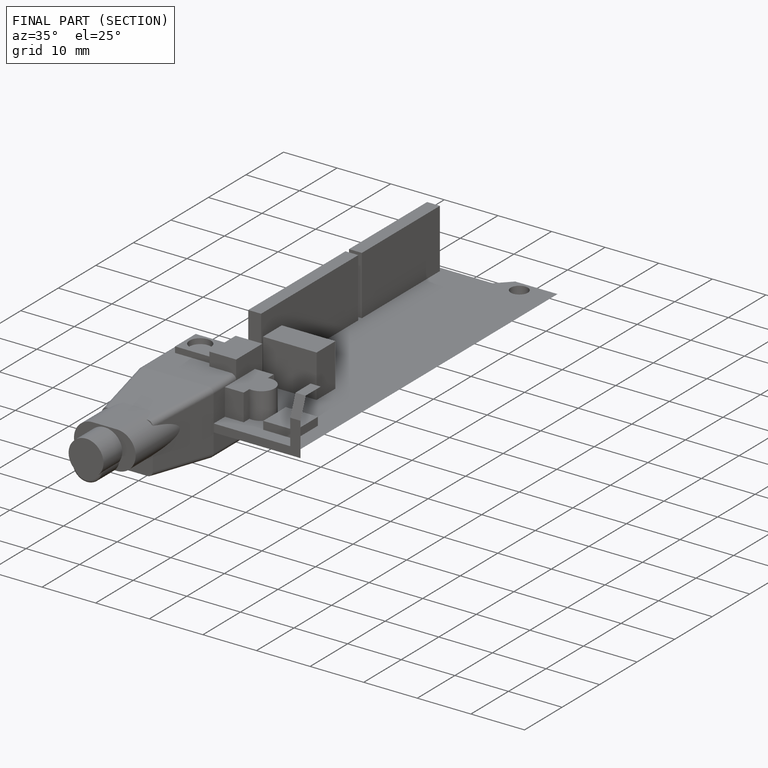
[diagram: finished part — half-section view (interior)]
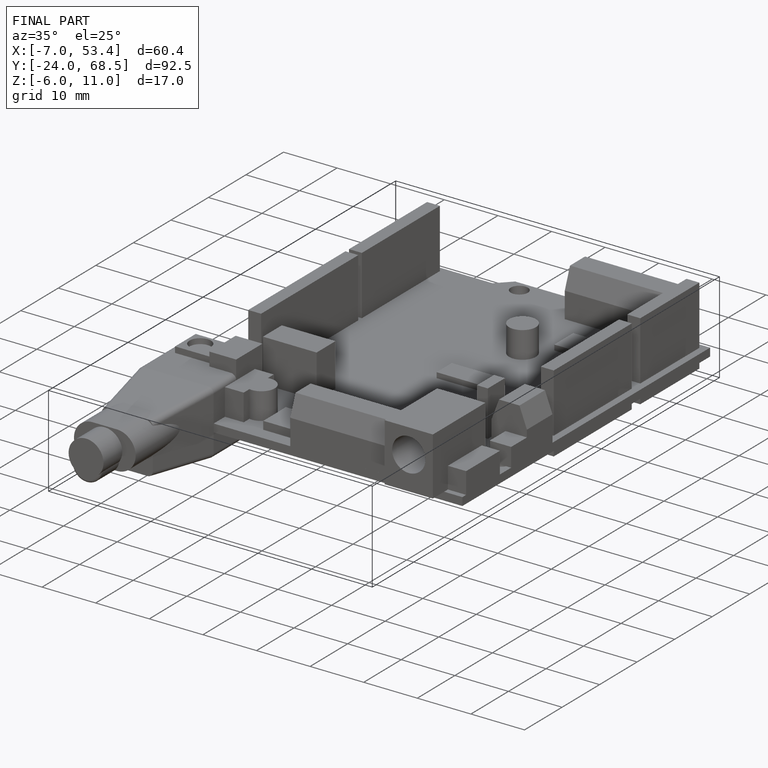
[diagram: finished part — iso view with bounding-box wireframe]
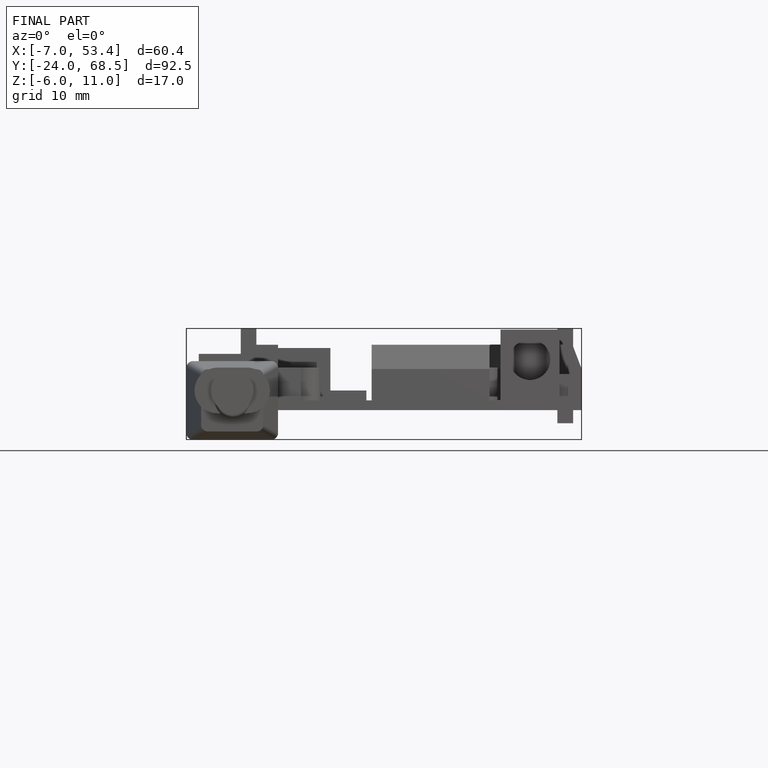
[diagram: finished part — front view with bounding-box wireframe]
